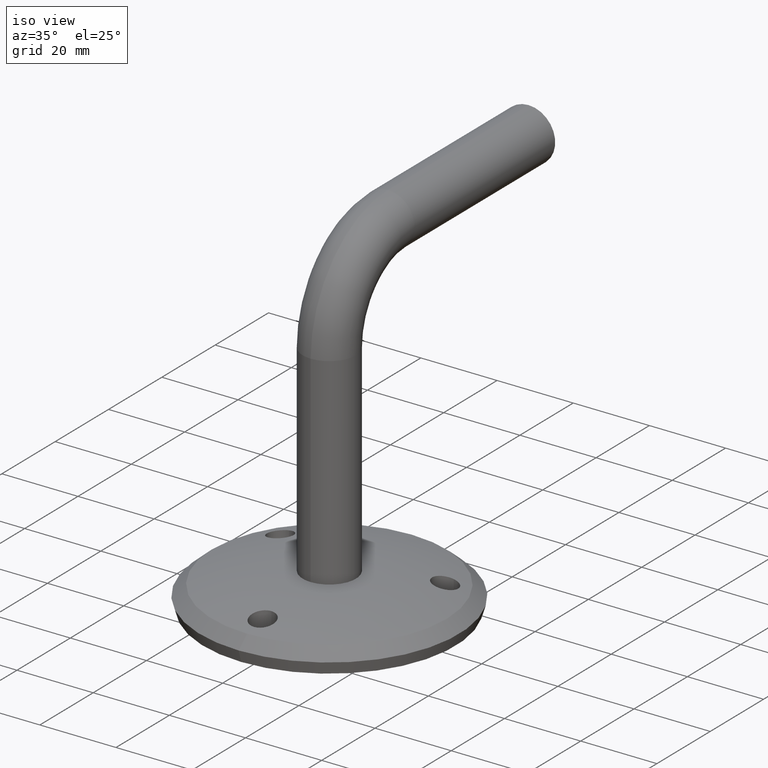
[diagram: clean part render]
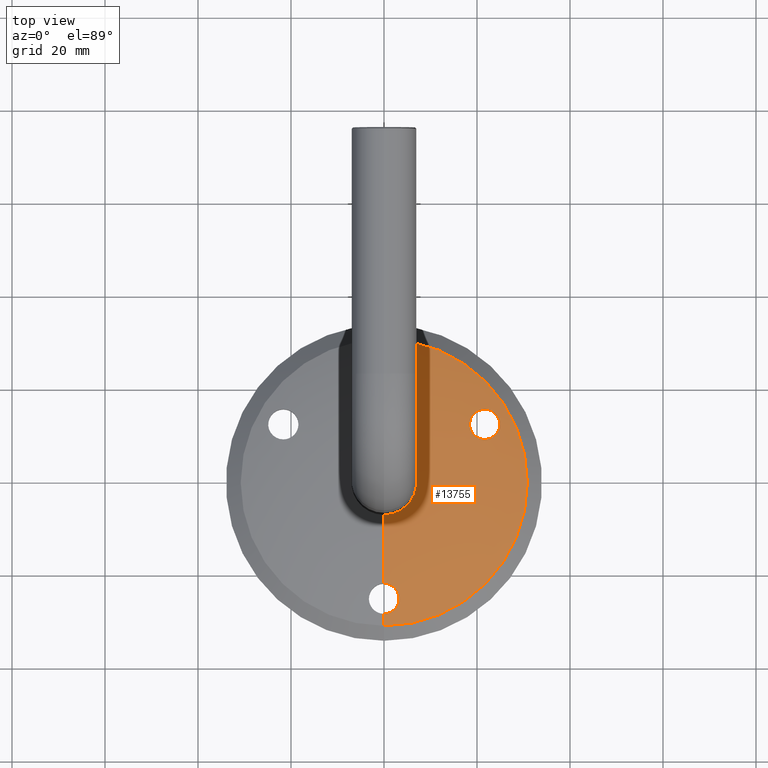
[diagram: tour spotlight — one face highlighted and labeled with its STEP entity id]
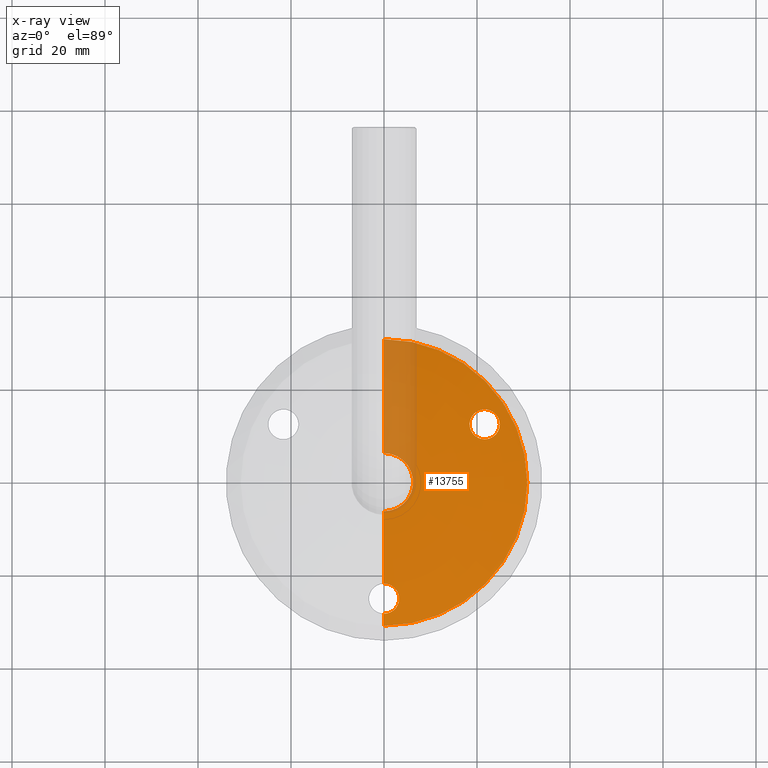
[diagram: x-ray of the same camera — body ghosted, this tour face saturated]
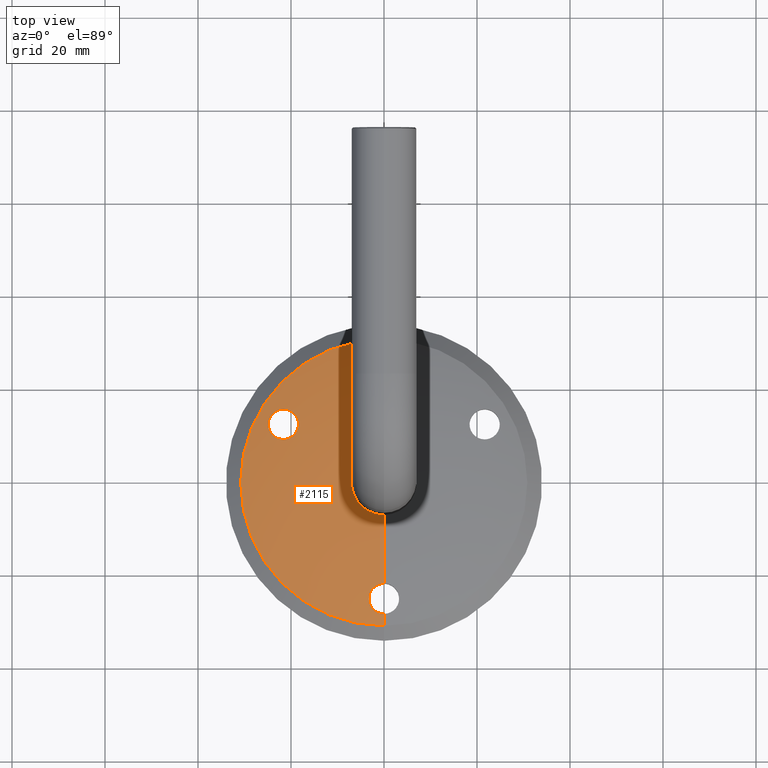
[diagram: tour spotlight — one face highlighted and labeled with its STEP entity id]
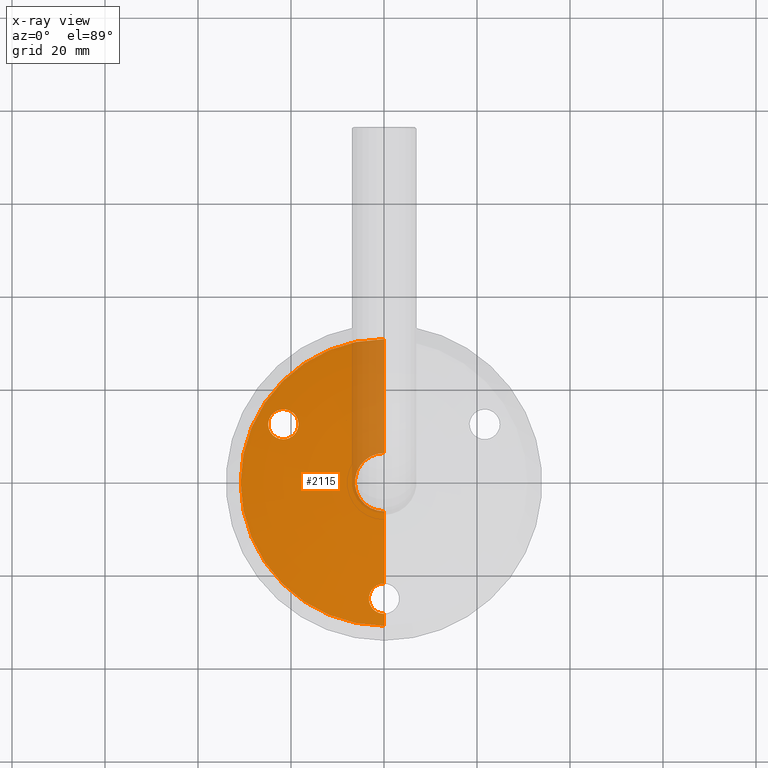
[diagram: x-ray of the same camera — body ghosted, this tour face saturated]
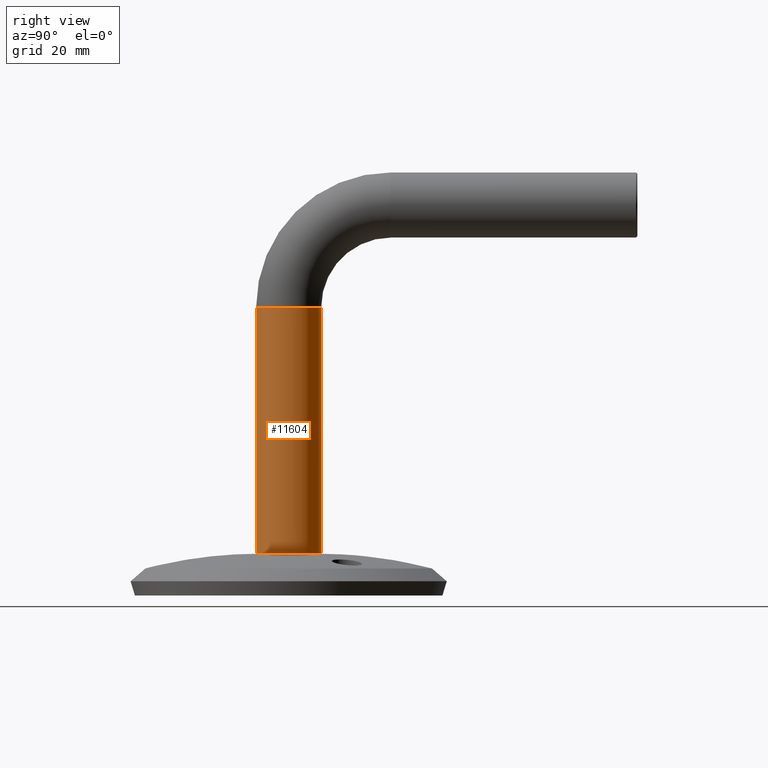
[diagram: tour spotlight — one face highlighted and labeled with its STEP entity id]
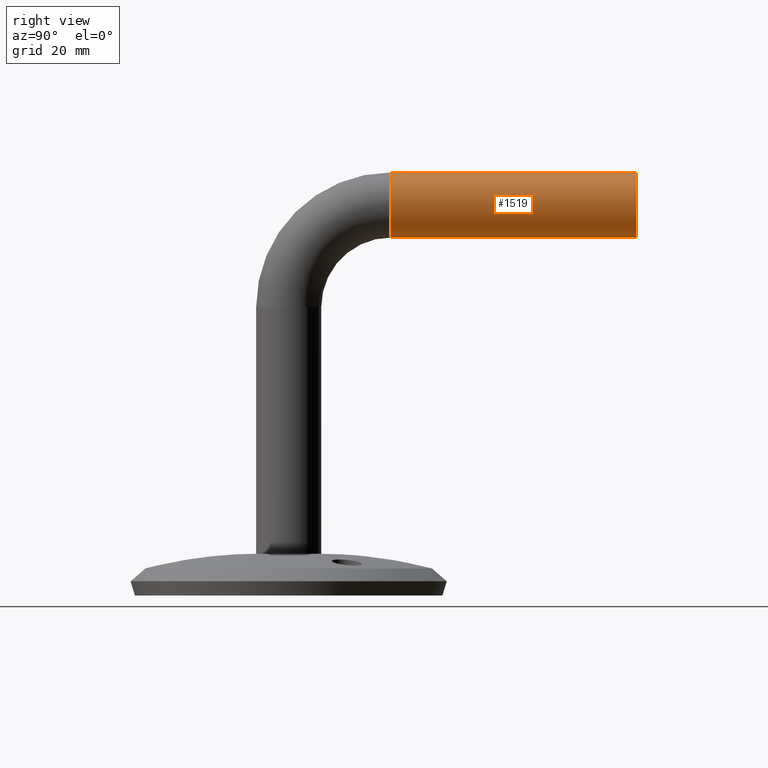
[diagram: tour spotlight — one face highlighted and labeled with its STEP entity id]
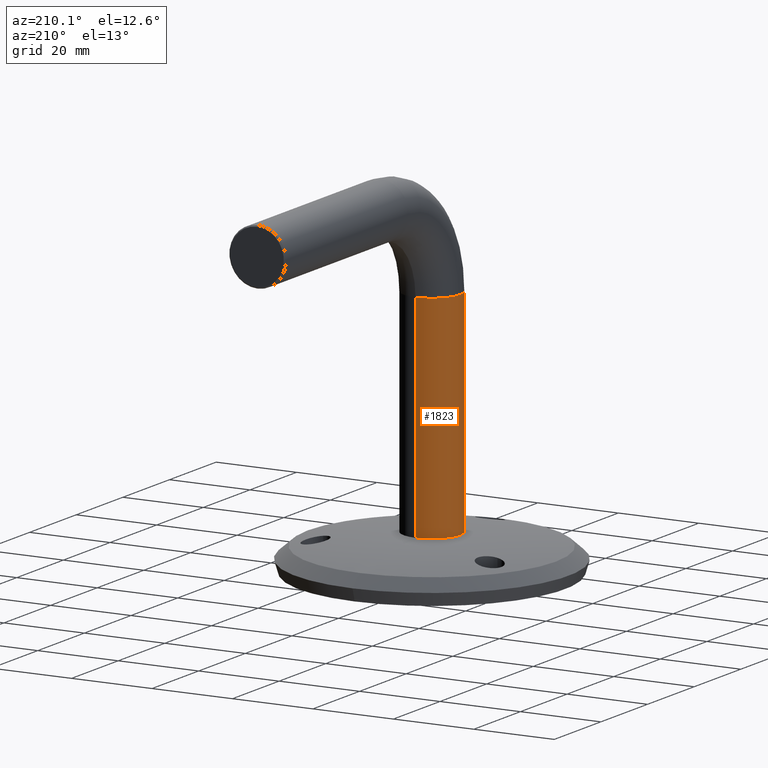
[diagram: tour spotlight — one face highlighted and labeled with its STEP entity id]
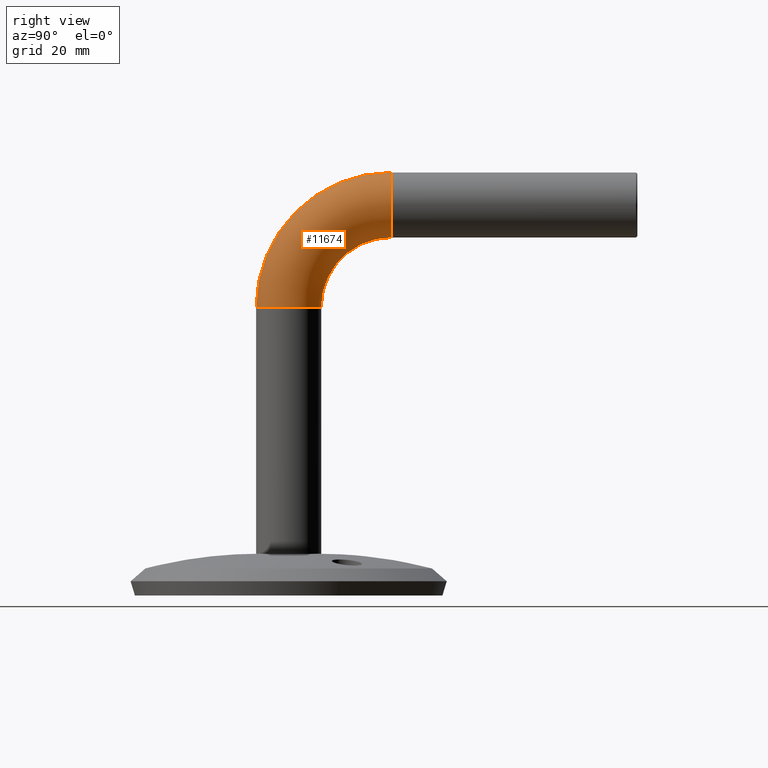
[diagram: tour spotlight — one face highlighted and labeled with its STEP entity id]
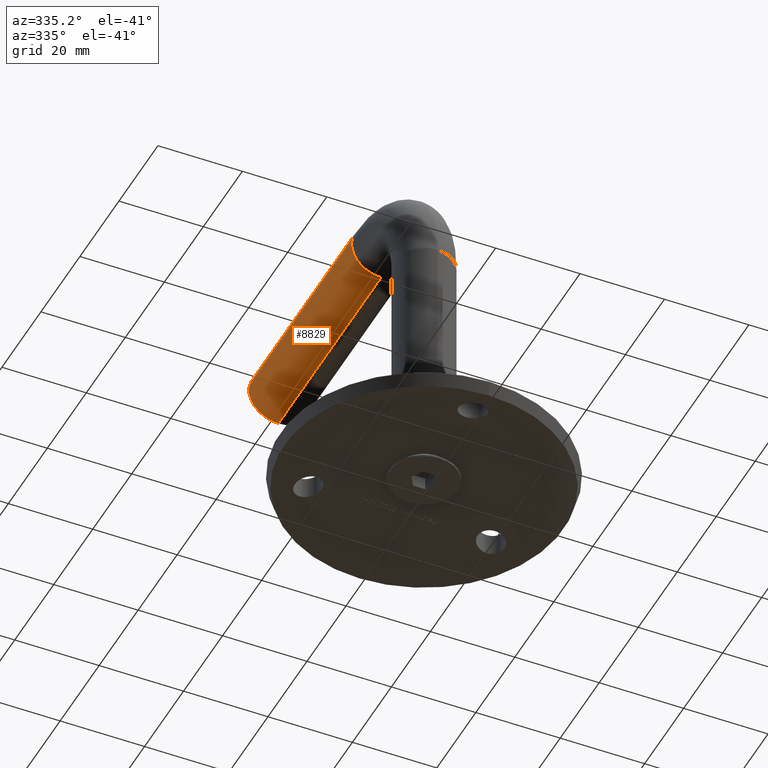
[diagram: tour spotlight — one face highlighted and labeled with its STEP entity id]
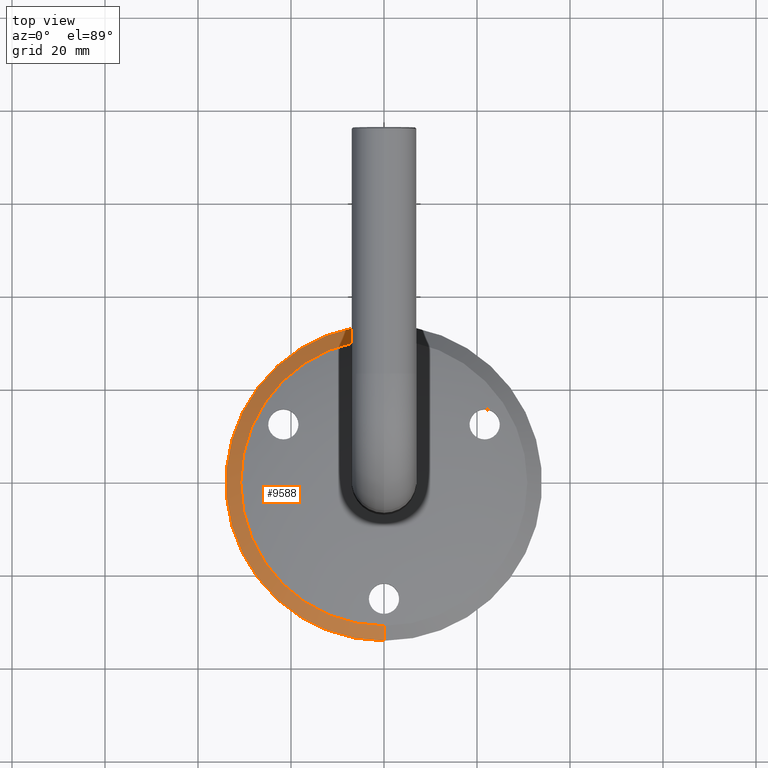
[diagram: tour spotlight — one face highlighted and labeled with its STEP entity id]
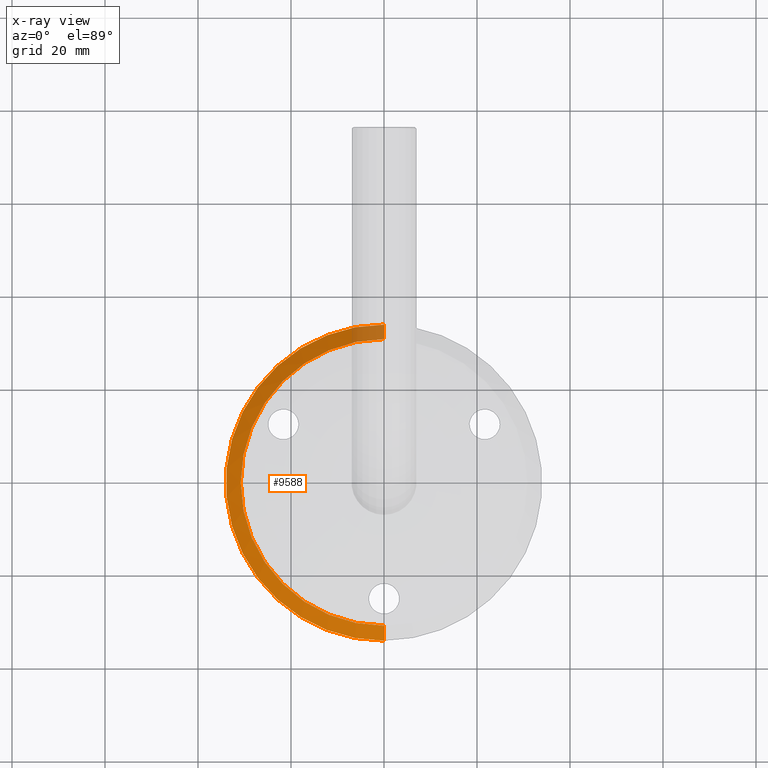
[diagram: x-ray of the same camera — body ghosted, this tour face saturated]
A machine part: a face-by-face anatomy tour. The part has 270 B-rep faces; the first image is the clean iso view, then the 8 largest visible faces are spotlighted one at a time (largest first), each with its STEP entity span.

Face 1 — top view, entity #13755. An x-ray twin of the same camera follows (body ghosted, this face saturated) — the face is partly hidden behind the body. In plain terms, the highlighted toroidal blend (fillet) surface has major radius 6.25 mm and minor (blend) radius 96.8679 mm.
Definition (entity closure, byte-faithful):
#73 = CARTESIAN_POINT ( 'NONE',  ( 21.86245113540460494, 6.763766823309047105, -15.75000000000139799 ) ) ;
#160 = CARTESIAN_POINT ( 'NONE',  ( 24.45772928046256567, 6.804931411281701870, -10.84860511332963107 ) ) ;
#192 = CARTESIAN_POINT ( 'NONE',  ( 3.249705971050873554, 7.083634695001598480, 25.21544843293304439 ) ) ;
#205 = CARTESIAN_POINT ( 'NONE',  ( 24.90220310267512005, 6.538631523790672695, -12.68904459162314602 ) ) ;
#236 = CARTESIAN_POINT ( 'NONE',  ( 1.996003134427482228, 7.624928418969818544, 22.42628224004257831 ) ) ;
#327 = CARTESIAN_POINT ( 'NONE',  ( 2.592119838162724843, 6.730555776375769739, 26.97193400861714352 ) ) ;
#380 = ORIENTED_EDGE ( 'NONE', *, *, #7277, .T. ) ;
#463 = AXIS2_PLACEMENT_3D ( 'NONE', #5791, #11240, #9058 ) ;
#488 = VERTEX_POINT ( 'NONE', #4862 ) ;
#517 = VERTEX_POINT ( 'NONE', #13438 ) ;
#581 = CARTESIAN_POINT ( 'NONE',  ( 21.65063509461107927, 7.443762172100906405, -9.249999999999799272 ) ) ;
#598 = CARTESIAN_POINT ( 'NONE',  ( 0.000000000000000000, 9.000000000000000000, -6.250000000000000000 ) ) ;
#676 = CARTESIAN_POINT ( 'NONE',  ( 18.51143231859730420, 7.570114271881434931, -13.36787084845414242 ) ) ;
#757 = CARTESIAN_POINT ( 'NONE',  ( 2.663648054263593768E-15, 7.751867547311097617, 21.75000000000000355 ) ) ;
#848 = FACE_OUTER_BOUND ( 'NONE', #9772, .T. ) ;
#1178 = CARTESIAN_POINT ( 'NONE',  ( 22.69554561619601429, 6.633605240404254033, -15.58477300314803671 ) ) ;
#1260 = CARTESIAN_POINT ( 'NONE',  ( 24.78935722947823095, 6.667071553097483338, -11.63058854748950566 ) ) ;
#1298 = CARTESIAN_POINT ( 'NONE',  ( 24.08382852400546170, 6.921987470483619731, -10.33515478715318281 ) ) ;
#1338 = VERTEX_POINT ( 'NONE', #5349 ) ;
#1346 = CARTESIAN_POINT ( 'NONE',  ( 23.62070329557335313, 7.045060877581001080, -9.906598898200451586 ) ) ;
#1353 = DIRECTION ( 'NONE',  ( 0.000000000000000000, -1.000000000000000000, 0.000000000000000000 ) ) ;
#1428 = CARTESIAN_POINT ( 'NONE',  ( 2.009756770403622106, 6.604719969269122082, 27.58888144971923495 ) ) ;
#1511 = AXIS2_PLACEMENT_3D ( 'NONE', #11181, #1353, #13221 ) ;
#1626 = CARTESIAN_POINT ( 'NONE',  ( 18.72398389055540591, 7.751757385428341252, -11.07031091074957985 ) ) ;
#1682 = ORIENTED_EDGE ( 'NONE', *, *, #2741, .F. ) ;
#2064 = CARTESIAN_POINT ( 'NONE',  ( 21.65063509458693858, 6.800900535022584847, -15.74999999999979927 ) ) ;
#2166 = CIRCLE ( 'NONE', #463, 96.86785809411671266 ) ;
#2248 = CARTESIAN_POINT ( 'NONE',  ( 23.08835176836804948, 6.580559381218789028, -15.42243618323327503 ) ) ;
#2328 = CARTESIAN_POINT ( 'NONE',  ( 22.07359756895965575, 7.371020030842715620, -9.270650619259839686 ) ) ;
#2444 = CARTESIAN_POINT ( 'NONE',  ( 3.229682686380122014, 7.209067972652524858, 24.58073312575073643 ) ) ;
#2497 = CARTESIAN_POINT ( 'NONE',  ( 3.229069361065497468, 7.042127213427962218, 25.42413973028978091 ) ) ;
#2537 = DIRECTION ( 'NONE',  ( 0.000000000000000000, -1.000000000000000000, 0.000000000000000000 ) ) ;
#2621 = EDGE_CURVE ( 'NONE', #517, #12366, #6112, .T. ) ;
#2674 = DIRECTION ( 'NONE',  ( 0.000000000000000000, 0.000000000000000000, -1.000000000000000000 ) ) ;
#2741 = EDGE_CURVE ( 'NONE', #11617, #5031, #5337, .T. ) ;
#2746 = CARTESIAN_POINT ( 'NONE',  ( 21.22593836437366832, 6.877350455654931416, -15.72896167030978276 ) ) ;
#2788 = CARTESIAN_POINT ( 'NONE',  ( 19.66613349858470272, 7.707035379802546160, -9.917363772214054407 ) ) ;
#2888 = CARTESIAN_POINT ( 'NONE',  ( 19.06615195321914413, 7.367732472658559573, -14.51575142524171014 ) ) ;
#3200 = AXIS2_PLACEMENT_3D ( 'NONE', #11658, #8372, #11610 ) ;
#3213 = CARTESIAN_POINT ( 'NONE',  ( 23.63329513723365949, 6.518338878212561305, -15.08412144697710922 ) ) ;
#3295 = CARTESIAN_POINT ( 'NONE',  ( 24.87570956837459235, 6.609347301377013650, -12.04574505799025985 ) ) ;
#3340 = EDGE_LOOP ( 'NONE', ( #8755, #5709 ) ) ;
#3345 = TOROIDAL_SURFACE ( 'NONE', #1511, 6.250000000000000000, 96.86785809411671266 ) ;
#3369 = CARTESIAN_POINT ( 'NONE',  ( 3.085467336228833624, 6.918431345501173446, 26.04245678958469412 ) ) ;
#3403 = CARTESIAN_POINT ( 'NONE',  ( 2.159482124885875098, 7.599272053114852987, 22.56183352467163417 ) ) ;
#3444 = CARTESIAN_POINT ( 'NONE',  ( 2.459690490778296823, 7.541585264345018302, 22.86506639478142588 ) ) ;
#3493 = CARTESIAN_POINT ( 'NONE',  ( 1.646809651888687664, 6.554338289744087831, 27.83411799325902081 ) ) ;
#3505 = DIRECTION ( 'NONE',  ( 0.000000000000000000, -1.000000000000000000, 0.000000000000000000 ) ) ;
#3667 = FACE_BOUND ( 'NONE', #3340, .T. ) ;
#3741 = CARTESIAN_POINT ( 'NONE',  ( 18.39903633224955115, 7.688309188422216778, -12.31178803480751327 ) ) ;
#3786 = CARTESIAN_POINT ( 'NONE',  ( 21.43905331395628266, 6.837993178315717735, -15.74999999999825206 ) ) ;
#3840 = CARTESIAN_POINT ( 'NONE',  ( 18.56031467720557160, 7.740847869413873816, -11.47081688709502068 ) ) ;
#3887 = CARTESIAN_POINT ( 'NONE',  ( 21.22808647218893086, 7.512113615294007118, -9.270498526028132957 ) ) ;
#3940 = CARTESIAN_POINT ( 'NONE',  ( 19.67079917939846112, 7.207160352955878757, -15.11209813470648022 ) ) ;
#4142 = CARTESIAN_POINT ( 'NONE',  ( 24.23895215472246178, 6.472759978912564272, -14.47733715001454691 ) ) ;
#4155 = CIRCLE ( 'NONE', #8924, 6.250000000000000000 ) ;
#4376 = CARTESIAN_POINT ( 'NONE',  ( 22.49021888152287119, 7.292763826947983752, -9.353145420845004665 ) ) ;
#4466 = CIRCLE ( 'NONE', #3200, 96.86785809411671266 ) ;
#4477 = EDGE_CURVE ( 'NONE', #11617, #488, #4155, .T. ) ;
#4523 = EDGE_CURVE ( 'NONE', #1338, #7027, #2166, .T. ) ;
#4536 = CARTESIAN_POINT ( 'NONE',  ( 0.4285509995761877522, 7.747931884540351533, 21.77113862225056806 ) ) ;
#4548 = CARTESIAN_POINT ( 'NONE',  ( 24.80225699383818494, 6.491294756071069649, -13.32196928157530458 ) ) ;
#4575 = CARTESIAN_POINT ( 'NONE',  ( 0.4273880230121439583, 6.473026365775032431, 28.22893473825014965 ) ) ;
#4712 = ORIENTED_EDGE ( 'NONE', *, *, #4477, .T. ) ;
#4841 = CARTESIAN_POINT ( 'NONE',  ( 18.40243920100218844, 7.647469699292127387, -12.73987849418973539 ) ) ;
#4862 = CARTESIAN_POINT ( 'NONE',  ( 2.269825870711645228E-15, 9.000000000000000000, 6.250000000000000000 ) ) ;
#4980 = CARTESIAN_POINT ( 'NONE',  ( 20.60567280708754012, 7.600999352358817518, -9.415259789300526094 ) ) ;
#5031 = VERTEX_POINT ( 'NONE', #5691 ) ;
#5035 = CARTESIAN_POINT ( 'NONE',  ( 20.81410388358640162, 6.957187990281101797, -15.64750318728762224 ) ) ;
#5326 = CARTESIAN_POINT ( 'NONE',  ( 22.07233054248151305, 6.728919162792756481, -15.72948930670457024 ) ) ;
#5337 = CIRCLE ( 'NONE', #7314, 96.86785809411671266 ) ;
#5349 = CARTESIAN_POINT ( 'NONE',  ( 1.039219180876196981E-14, 6.468677414358976030, 28.25000000000088818 ) ) ;
#5376 = CARTESIAN_POINT ( 'NONE',  ( 24.47807423844119157, 6.467200565668955292, -14.11704523635818020 ) ) ;
#5534 = CARTESIAN_POINT ( 'NONE',  ( 1.039219180876196981E-14, 6.468677414358976030, 28.25000000000088818 ) ) ;
#5628 = CARTESIAN_POINT ( 'NONE',  ( 22.69142572447980299, 7.252724095471847932, -9.414000671765462513 ) ) ;
#5666 = CARTESIAN_POINT ( 'NONE',  ( 2.456549884338156797, 6.696671567172454154, 27.13836269724738059 ) ) ;
#5675 = AXIS2_PLACEMENT_3D ( 'NONE', #6621, #3505, #13173 ) ;
#5691 = CARTESIAN_POINT ( 'NONE',  ( 0.000000000000000000, 5.832423396846378338, -30.81906958466698754 ) ) ;
#5709 = ORIENTED_EDGE ( 'NONE', *, *, #13056, .T. ) ;
#5719 = CARTESIAN_POINT ( 'NONE',  ( 1.450730301065352501, 7.689426294242496240, 22.08392384212722703 ) ) ;
#5791 = CARTESIAN_POINT ( 'NONE',  ( 7.654042494670957606E-16, -87.86785809411674109, 6.250000000000000000 ) ) ;
#5924 = CARTESIAN_POINT ( 'NONE',  ( 20.61300617132758006, 6.998075069688369787, -15.58719513425919878 ) ) ;
#5968 = CARTESIAN_POINT ( 'NONE',  ( 21.44005090804436620, 7.478899173523445576, -9.249999999999799272 ) ) ;
#6008 = DIRECTION ( 'NONE',  ( -1.000000000000000000, -0.000000000000000000, -0.000000000000000000 ) ) ;
#6021 = CARTESIAN_POINT ( 'NONE',  ( 19.19867679768557167, 7.741696785578355389, -10.35609116076234848 ) ) ;
#6061 = CARTESIAN_POINT ( 'NONE',  ( 0.000000000000000000, -87.86785809411674109, -6.250000000000000000 ) ) ;
#6071 = CARTESIAN_POINT ( 'NONE',  ( 18.57598887436824597, 7.539822874930480090, -13.57414181677396847 ) ) ;
#6101 = CARTESIAN_POINT ( 'NONE',  ( 21.65063509461107927, 7.443762172100906405, -9.249999999999799272 ) ) ;
#6112 = B_SPLINE_CURVE_WITH_KNOTS ( 'NONE', 3,
 ( #2064, #73, #5326, #7583, #1178, #2248, #10637, #3213, #8580, #11853, #4142, #5376, #13046, #6542, #4548, #13175, #205, #11027, #3295, #1260, #10857, #7624, #160, #7661, #1298, #8754, #1346, #7712, #12110, #5628, #4376, #2328, #13007, #9902 ),
 .UNSPECIFIED., .F., .F.,
 ( 4, 2, 2, 2, 2, 2, 2, 2, 2, 2, 2, 2, 2, 2, 2, 2, 4 ),
 ( 0.002462102376107836582, 0.003103432298784822123, 0.003744762221461807664, 0.004386092144138795806, 0.005027422066815783082, 0.005668751989492770357, 0.006310081912169758500, 0.006951411834846745776, 0.007592741757523733918, 0.008234071680200721194, 0.008875401602877711071, 0.009516731525554697479, 0.01015806144823168562, 0.01079939137090867377, 0.01144072129358566191, 0.01208205121626265005, 0.01272338113893963646 ),
 .UNSPECIFIED. ) ;
#6542 = CARTESIAN_POINT ( 'NONE',  ( 24.74007116709504928, 6.480806343265234304, -13.53137004372360686 ) ) ;
#6576 = EDGE_CURVE ( 'NONE', #5031, #7027, #13559, .T. ) ;
#6621 = CARTESIAN_POINT ( 'NONE',  ( 0.000000000000000000, 5.832423396846378338, 0.000000000000000000 ) ) ;
#6723 = ORIENTED_EDGE ( 'NONE', *, *, #13077, .T. ) ;
#6925 = CARTESIAN_POINT ( 'NONE',  ( 0.000000000000000000, 9.000000000000000000, 0.000000000000000000 ) ) ;
#7027 = VERTEX_POINT ( 'NONE', #10195 ) ;
#7061 = CARTESIAN_POINT ( 'NONE',  ( 20.02175308365444195, 7.671540754690670205, -9.679539068860270490 ) ) ;
#7104 = CARTESIAN_POINT ( 'NONE',  ( 20.80858069379270958, 7.573490018436577209, -9.353705116369464889 ) ) ;
#7199 = CARTESIAN_POINT ( 'NONE',  ( 19.50148463014431499, 7.721053902950639980, -10.05263470607560272 ) ) ;
#7277 = EDGE_CURVE ( 'NONE', #10581, #1338, #12098, .T. ) ;
#7314 = AXIS2_PLACEMENT_3D ( 'NONE', #6061, #6008, #11509 ) ;
#7583 = CARTESIAN_POINT ( 'NONE',  ( 22.48822433192760073, 6.663905655654024152, -15.64735960805328752 ) ) ;
#7624 = CARTESIAN_POINT ( 'NONE',  ( 24.55896417698683010, 6.768395504227889603, -11.03380705438240206 ) ) ;
#7661 = CARTESIAN_POINT ( 'NONE',  ( 24.22103912793650338, 6.881501039474803960, -10.50002351378152277 ) ) ;
#7699 = CARTESIAN_POINT ( 'NONE',  ( 2.663648054263593768E-15, 7.751867547311097617, 21.75000000000000355 ) ) ;
#7712 = CARTESIAN_POINT ( 'NONE',  ( 23.26934075015503822, 7.128562156529512528, -9.673926753962678760 ) ) ;
#7785 = CARTESIAN_POINT ( 'NONE',  ( 0.8522884021811605315, 7.732039714249881790, 21.85630691137521353 ) ) ;
#7826 = CARTESIAN_POINT ( 'NONE',  ( 3.250287847956591314, 7.167153336952601705, 24.79351554304808758 ) ) ;
#8045 = CARTESIAN_POINT ( 'NONE',  ( 18.82432108497600254, 7.753172816654830157, -10.88131155581647391 ) ) ;
#8372 = DIRECTION ( 'NONE',  ( 1.000000000000000000, 0.000000000000000000, -1.224646799147353207E-16 ) ) ;
#8580 = CARTESIAN_POINT ( 'NONE',  ( 23.80056543789056889, 6.502661505423286137, -14.94660538462470001 ) ) ;
#8754 = CARTESIAN_POINT ( 'NONE',  ( 23.78361427215688195, 7.003734896702746404, -10.03882449049443970 ) ) ;
#8755 = ORIENTED_EDGE ( 'NONE', *, *, #2621, .T. ) ;
#8834 = CARTESIAN_POINT ( 'NONE',  ( 0.2138210466371841534, 7.751867547311112716, 21.75000000000001066 ) ) ;
#8884 = CARTESIAN_POINT ( 'NONE',  ( 3.088691825821385795, 7.329241879095260259, 23.96659625460822696 ) ) ;
#8924 = AXIS2_PLACEMENT_3D ( 'NONE', #6925, #2537, #2674 ) ;
#8930 = CARTESIAN_POINT ( 'NONE',  ( 1.056877654030352165, 6.503584732752882402, 28.08073632947194653 ) ) ;
#9058 = DIRECTION ( 'NONE',  ( -1.224646799147353207E-16, 0.000000000000000000, -1.000000000000000000 ) ) ;
#9138 = CARTESIAN_POINT ( 'NONE',  ( 20.02459226002800463, 7.123631258283292134, -15.34574682953655334 ) ) ;
#9178 = CARTESIAN_POINT ( 'NONE',  ( 18.49941053330472585, 7.731483804127374349, -11.67671642645738750 ) ) ;
#9328 = CARTESIAN_POINT ( 'NONE',  ( 18.42506198759111768, 7.623836625657902211, -12.95107871796262167 ) ) ;
#9772 = EDGE_LOOP ( 'NONE', ( #4712, #6723, #380, #11782, #10259, #1682 ) ) ;
#9845 = CARTESIAN_POINT ( 'NONE',  ( 2.595233511244321889, 7.509637272426216370, 23.03229089533778406 ) ) ;
#9902 = CARTESIAN_POINT ( 'NONE',  ( 21.65063509461107927, 7.443762172100906405, -9.249999999999799272 ) ) ;
#9942 = CARTESIAN_POINT ( 'NONE',  ( 1.056621126302969005, 7.720304892845141431, 21.91914454081443964 ) ) ;
#9995 = CARTESIAN_POINT ( 'NONE',  ( 2.925183551982537988, 6.840006903822291484, 26.43182611664164483 ) ) ;
#10195 = CARTESIAN_POINT ( 'NONE',  ( 3.774247491956197357E-15, 5.832423396846378338, 30.81906958466698754 ) ) ;
#10240 = CARTESIAN_POINT ( 'NONE',  ( 20.21326817483108940, 7.649933360824827666, -9.577407882072016321 ) ) ;
#10259 = ORIENTED_EDGE ( 'NONE', *, *, #6576, .F. ) ;
#10581 = VERTEX_POINT ( 'NONE', #757 ) ;
#10637 = CARTESIAN_POINT ( 'NONE',  ( 23.27601223807464592, 6.557444740508055148, -15.32254736697993813 ) ) ;
#10857 = CARTESIAN_POINT ( 'NONE',  ( 24.72580485454064458, 6.699066009842794323, -11.42695258595624352 ) ) ;
#11015 = CARTESIAN_POINT ( 'NONE',  ( 2.828097502070020308, 7.441935901095575012, 23.38476607971431775 ) ) ;
#11027 = CARTESIAN_POINT ( 'NONE',  ( 24.89887064139564998, 6.583230249695103176, -12.26042078284472581 ) ) ;
#11059 = CARTESIAN_POINT ( 'NONE',  ( 0.8488135840355020001, 6.490429286983676604, 28.14455013724532861 ) ) ;
#11181 = CARTESIAN_POINT ( 'NONE',  ( 0.000000000000000000, -87.86785809411674109, 0.000000000000000000 ) ) ;
#11240 = DIRECTION ( 'NONE',  ( 1.000000000000000000, 0.000000000000000000, -1.224646799147353207E-16 ) ) ;
#11371 = CARTESIAN_POINT ( 'NONE',  ( 21.65063509458693858, 6.800900535022584847, -15.74999999999979927 ) ) ;
#11509 = DIRECTION ( 'NONE',  ( 0.000000000000000000, 0.000000000000000000, 1.000000000000000000 ) ) ;
#11555 = B_SPLINE_CURVE_WITH_KNOTS ( 'NONE', 3,
 ( #581, #5968, #3887, #7104, #4980, #10240, #7061, #2788, #7199, #6021, #12531, #8045, #1626, #3840, #9178, #13549, #3741, #4841, #9328, #676, #6071, #12385, #2888, #3940, #9138, #5924, #5035, #2746, #3786, #11371 ),
 .UNSPECIFIED., .F., .F.,
 ( 4, 2, 2, 2, 2, 2, 2, 2, 2, 2, 2, 2, 2, 2, 4 ),
 ( 0.01272338113893963646, 0.01336400177601663498, 0.01400462241309363351, 0.01464524305017063203, 0.01528586368724763056, 0.01592648432432462735, 0.01656710496140162761, 0.01720772559847862440, 0.01784834623555562466, 0.01848896687263262145, 0.01912958750970961824, 0.02041082878386361182, 0.02169207005801760541, 0.02233269069509459526, 0.02297331133217158511 ),
 .UNSPECIFIED. ) ;
#11610 = DIRECTION ( 'NONE',  ( -1.224646799147353207E-16, 0.000000000000000000, -1.000000000000000000 ) ) ;
#11617 = VERTEX_POINT ( 'NONE', #598 ) ;
#11658 = CARTESIAN_POINT ( 'NONE',  ( 7.654042494670957606E-16, -87.86785809411674109, 6.250000000000000000 ) ) ;
#11782 = ORIENTED_EDGE ( 'NONE', *, *, #4523, .T. ) ;
#11853 = CARTESIAN_POINT ( 'NONE',  ( 24.10214240435892918, 6.479979331016952671, -14.64433912879501420 ) ) ;
#12014 = CARTESIAN_POINT ( 'NONE',  ( 3.148826693734348314, 7.289884883104234881, 24.16841992606106970 ) ) ;
#12054 = CARTESIAN_POINT ( 'NONE',  ( 3.147410079571849373, 6.959653925929659479, 25.83701448039550286 ) ) ;
#12096 = CARTESIAN_POINT ( 'NONE',  ( 2.826711096429196601, 6.802395822271286363, 26.61781128907599125 ) ) ;
#12098 = B_SPLINE_CURVE_WITH_KNOTS ( 'NONE', 3,
 ( #7699, #8834, #4536, #7785, #9942, #5719, #12189, #236, #3403, #3444, #9845, #11015, #13252, #8884, #12014, #2444, #7826, #192, #2497, #12054, #3369, #9995, #12096, #327, #5666, #1428, #3493, #8930, #11059, #4575, #13120, #5534 ),
 .UNSPECIFIED., .F., .F.,
 ( 4, 2, 2, 2, 2, 2, 2, 2, 2, 2, 2, 2, 2, 2, 2, 4 ),
 ( 0.002675998669147024427, 0.003317463588860728937, 0.003958928508574433881, 0.004600393428288137958, 0.005241858348001842034, 0.005883323267715546978, 0.006524788187429251055, 0.007166253107142955131, 0.007807718026856659208, 0.008449182946570363284, 0.009090647866284069095, 0.009732112785997773172, 0.01037357770571147725, 0.01165650754513889407, 0.01229797246485260162, 0.01293943738456630743 ),
 .UNSPECIFIED. ) ;
#12110 = CARTESIAN_POINT ( 'NONE',  ( 23.08007677083683262, 7.170850833997814533, -9.573682607208269246 ) ) ;
#12189 = CARTESIAN_POINT ( 'NONE',  ( 1.642279463264157746, 7.670001037368018082, 22.18735537525528301 ) ) ;
#12366 = VERTEX_POINT ( 'NONE', #6101 ) ;
#12385 = CARTESIAN_POINT ( 'NONE',  ( 18.82370166191919481, 7.442824155314308854, -14.15827243115057854 ) ) ;
#12531 = CARTESIAN_POINT ( 'NONE',  ( 19.06070939029686429, 7.748219674553298297, -10.52503468219682325 ) ) ;
#13007 = CARTESIAN_POINT ( 'NONE',  ( 21.86145243684352835, 7.408586267515269164, -9.249999999999797495 ) ) ;
#13046 = CARTESIAN_POINT ( 'NONE',  ( 24.57807112464464083, 6.468862709367106056, -13.92774567172055278 ) ) ;
#13056 = EDGE_CURVE ( 'NONE', #12366, #517, #11555, .T. ) ;
#13077 = EDGE_CURVE ( 'NONE', #488, #10581, #4466, .T. ) ;
#13120 = CARTESIAN_POINT ( 'NONE',  ( 0.2146858730883783040, 6.468677414359156330, 28.25000000000000000 ) ) ;
#13173 = DIRECTION ( 'NONE',  ( 0.000000000000000000, 0.000000000000000000, -1.000000000000000000 ) ) ;
#13175 = CARTESIAN_POINT ( 'NONE',  ( 24.88285900870015510, 6.520233913796923630, -12.90135104924756071 ) ) ;
#13221 = DIRECTION ( 'NONE',  ( 0.000000000000000000, 0.000000000000000000, -1.000000000000000000 ) ) ;
#13252 = CARTESIAN_POINT ( 'NONE',  ( 2.927248823895080232, 7.405802940792455047, 23.57201021751188819 ) ) ;
#13438 = CARTESIAN_POINT ( 'NONE',  ( 21.65063509458693858, 6.800900535022584847, -15.74999999999979927 ) ) ;
#13549 = CARTESIAN_POINT ( 'NONE',  ( 18.41883045339242031, 7.705345168268687317, -12.09570946184352813 ) ) ;
#13559 = CIRCLE ( 'NONE', #5675, 30.81906958466698043 ) ;
#13755 = ADVANCED_FACE ( 'NONE', ( #3667, #848 ), #3345, .T. ) ;

Face 2 — top view, entity #2115. An x-ray twin of the same camera follows (body ghosted, this face saturated) — the face is partly hidden behind the body. In plain terms, the highlighted toroidal blend (fillet) surface has major radius 6.25 mm and minor (blend) radius 96.8679 mm.
Definition (entity closure, byte-faithful):
#27 = CARTESIAN_POINT ( 'NONE',  ( -3.087914777517207110, 7.329578676758496059, 23.96485749719986202 ) ) ;
#125 = AXIS2_PLACEMENT_3D ( 'NONE', #12286, #13211, #11168 ) ;
#193 = CARTESIAN_POINT ( 'NONE',  ( -23.28009756290877874, 6.556974335884590666, -15.32005004288423144 ) ) ;
#463 = AXIS2_PLACEMENT_3D ( 'NONE', #5791, #11240, #9058 ) ;
#472 = ORIENTED_EDGE ( 'NONE', *, *, #8482, .T. ) ;
#488 = VERTEX_POINT ( 'NONE', #4862 ) ;
#598 = CARTESIAN_POINT ( 'NONE',  ( 0.000000000000000000, 9.000000000000000000, -6.250000000000000000 ) ) ;
#748 = CARTESIAN_POINT ( 'NONE',  ( -18.82256855949109564, 7.753174623746891925, -10.88432750625080736 ) ) ;
#757 = CARTESIAN_POINT ( 'NONE',  ( 2.663648054263593768E-15, 7.751867547311097617, 21.75000000000000355 ) ) ;
#858 = CARTESIAN_POINT ( 'NONE',  ( -18.74308623186221112, 7.474451496855821553, -13.96752491970396015 ) ) ;
#1070 = CARTESIAN_POINT ( 'NONE',  ( -24.87524793929568645, 6.609758816811923232, -12.04252570013574442 ) ) ;
#1083 = CARTESIAN_POINT ( 'NONE',  ( -21.43976626600841939, 6.837868189877881697, -15.75000000000114575 ) ) ;
#1112 = CARTESIAN_POINT ( 'NONE',  ( -23.08099377227790683, 7.170656500347169171, -9.574070142667245875 ) ) ;
#1124 = CARTESIAN_POINT ( 'NONE',  ( -2.609078977561599011, 7.512945176536091729, 23.01562196836385965 ) ) ;
#1167 = CARTESIAN_POINT ( 'NONE',  ( -24.22026000917217203, 6.881732273111484943, -10.49907461168910672 ) ) ;
#1254 = CARTESIAN_POINT ( 'NONE',  ( -22.07586815871226449, 6.728342360086890572, -15.72903501752531596 ) ) ;
#1338 = VERTEX_POINT ( 'NONE', #5349 ) ;
#1840 = CARTESIAN_POINT ( 'NONE',  ( -20.03544034700096432, 7.123323148496264245, -15.32816659887414268 ) ) ;
#1930 = CARTESIAN_POINT ( 'NONE',  ( -19.68196256347058437, 7.206783464783149462, -15.09455368971767086 ) ) ;
#2109 = CARTESIAN_POINT ( 'NONE',  ( -3.249823578747944364, 7.084265242094508253, 25.21226846950460398 ) ) ;
#2115 = ADVANCED_FACE ( 'NONE', ( #4974, #3782 ), #13570, .T. ) ;
#2151 = CARTESIAN_POINT ( 'NONE',  ( -0.4298055247723496231, 7.747888868540231400, 21.77136921226019695 ) ) ;
#2166 = CIRCLE ( 'NONE', #463, 96.86785809411671266 ) ;
#2195 = B_SPLINE_CURVE_WITH_KNOTS ( 'NONE', 3,
 ( #12817, #7523, #13870, #3153, #3205, #1112, #10713, #4229, #13922, #6400, #1167, #7474, #3287, #5220, #12769, #1070, #13831, #8564, #4370, #4489, #8789, #5536, #2317, #12055, #12097, #193, #2408, #12017, #11016, #1254, #9846, #13075 ),
 .UNSPECIFIED., .F., .F.,
 ( 4, 2, 2, 2, 2, 2, 2, 2, 2, 2, 2, 2, 2, 2, 2, 4 ),
 ( 0.01281170747020639669, 0.01345283528534573121, 0.01409396310048506747, 0.01473509091562440199, 0.01537621873076373651, 0.01601734654590307103, 0.01665847436104240728, 0.01729960217618174007, 0.01794072999132107632, 0.01858185780646041257, 0.01922298562159974883, 0.02050524125187841787, 0.02114636906701775412, 0.02178749688215709385, 0.02242862469729643010, 0.02306975251243576636 ),
 .UNSPECIFIED. ) ;
#2317 = CARTESIAN_POINT ( 'NONE',  ( -24.25798818107862687, 6.468284958702171572, -14.48787346568033030 ) ) ;
#2318 = EDGE_CURVE ( 'NONE', #488, #11617, #11411, .T. ) ;
#2408 = CARTESIAN_POINT ( 'NONE',  ( -23.08915652674199137, 6.580450357354504121, -15.42210707260243652 ) ) ;
#2566 = ORIENTED_EDGE ( 'NONE', *, *, #2741, .T. ) ;
#2741 = EDGE_CURVE ( 'NONE', #11617, #5031, #5337, .T. ) ;
#2881 = EDGE_CURVE ( 'NONE', #12800, #7089, #7286, .T. ) ;
#2914 = CARTESIAN_POINT ( 'NONE',  ( -20.21179144371190617, 7.650107028217478344, -9.578124035909581835 ) ) ;
#2949 = CARTESIAN_POINT ( 'NONE',  ( -18.57704045484267041, 7.539352016929532496, -13.57725845070311266 ) ) ;
#2973 = CARTESIAN_POINT ( 'NONE',  ( -1.453099171222520081, 6.537682605050811446, 27.91504995617540530 ) ) ;
#3005 = CARTESIAN_POINT ( 'NONE',  ( -19.21955619323129127, 7.326985164524205452, -14.66714645821740604 ) ) ;
#3112 = CARTESIAN_POINT ( 'NONE',  ( -1.055168650254638019, 6.503427943745303530, 28.08149842899937099 ) ) ;
#3153 = CARTESIAN_POINT ( 'NONE',  ( -22.48974711991994724, 7.292846355353956866, -9.353108993629335899 ) ) ;
#3161 = CARTESIAN_POINT ( 'NONE',  ( 2.663648054263593768E-15, 7.751867547311097617, 21.75000000000000355 ) ) ;
#3200 = AXIS2_PLACEMENT_3D ( 'NONE', #11658, #8372, #11610 ) ;
#3205 = CARTESIAN_POINT ( 'NONE',  ( -22.69079268773315761, 7.252858608254179273, -9.413729814439662391 ) ) ;
#3287 = CARTESIAN_POINT ( 'NONE',  ( -24.55888350597390968, 6.768417864970216691, -11.03372461855246023 ) ) ;
#3782 = FACE_BOUND ( 'NONE', #6996, .T. ) ;
#3915 = CARTESIAN_POINT ( 'NONE',  ( -18.42568917097505832, 7.623336825853793464, -12.95527577152108556 ) ) ;
#3969 = CARTESIAN_POINT ( 'NONE',  ( -20.80936312523732568, 7.573381300241443626, -9.353493578317019441 ) ) ;
#4066 = CARTESIAN_POINT ( 'NONE',  ( -20.81396071332237696, 6.957202701091071972, -15.64761555734165910 ) ) ;
#4229 = CARTESIAN_POINT ( 'NONE',  ( -23.61966499722959512, 7.045310292042381128, -9.905886485022943333 ) ) ;
#4235 = B_SPLINE_CURVE_WITH_KNOTS ( 'NONE', 3,
 ( #13790, #8476, #9583, #8427, #3112, #2973, #11747, #12825, #6353, #10528, #7483, #5372, #10769, #5322, #12910, #6409, #2109, #11893, #7530, #10815, #27, #6445, #1124, #4238, #4280, #5420, #9632, #8620, #10719, #2151, #7442, #3161 ),
 .UNSPECIFIED., .F., .F.,
 ( 4, 2, 2, 2, 2, 2, 2, 2, 2, 2, 2, 2, 2, 2, 2, 4 ),
 ( 0.01293943738456630743, 0.01358043578084575098, 0.01422143417712519453, 0.01486243257340463808, 0.01550343096968408163, 0.01614442936596352518, 0.01678542776224296873, 0.01742642615852241228, 0.01806742455480185583, 0.01870842295108129938, 0.01934942134736074293, 0.02063141813991963003, 0.02127241653619907358, 0.02191341493247851713, 0.02255441332875796415, 0.02319541172503740770 ),
 .UNSPECIFIED. ) ;
#4238 = CARTESIAN_POINT ( 'NONE',  ( -2.157926675756084212, 7.599537841312431929, 22.56043245984891854 ) ) ;
#4280 = CARTESIAN_POINT ( 'NONE',  ( -1.994418385700591712, 7.625152611999956420, 22.42509589065235787 ) ) ;
#4370 = CARTESIAN_POINT ( 'NONE',  ( -24.88342391612608751, 6.520593587663499058, -12.89687774334093540 ) ) ;
#4466 = CIRCLE ( 'NONE', #3200, 96.86785809411671266 ) ;
#4489 = CARTESIAN_POINT ( 'NONE',  ( -24.80330873290085236, 6.491518641873286199, -13.31797581755488658 ) ) ;
#4523 = EDGE_CURVE ( 'NONE', #1338, #7027, #2166, .T. ) ;
#4862 = CARTESIAN_POINT ( 'NONE',  ( 2.269825870711645228E-15, 9.000000000000000000, 6.250000000000000000 ) ) ;
#4904 = EDGE_LOOP ( 'NONE', ( #5787, #13078, #2566, #9190, #12787, #12767 ) ) ;
#4932 = DIRECTION ( 'NONE',  ( 0.000000000000000000, -1.000000000000000000, 0.000000000000000000 ) ) ;
#4974 = FACE_OUTER_BOUND ( 'NONE', #4904, .T. ) ;
#5012 = CARTESIAN_POINT ( 'NONE',  ( -18.72252191204538718, 7.751706376908242824, -11.07339080543205689 ) ) ;
#5031 = VERTEX_POINT ( 'NONE', #5691 ) ;
#5060 = CARTESIAN_POINT ( 'NONE',  ( -18.47816835490717580, 7.735278524248696108, -11.67283786278995983 ) ) ;
#5102 = CARTESIAN_POINT ( 'NONE',  ( -19.51891519723501034, 7.247503981040253507, -14.96220199724335131 ) ) ;
#5220 = CARTESIAN_POINT ( 'NONE',  ( -24.72538480566374375, 6.699251686278230977, -11.42585544230994721 ) ) ;
#5322 = CARTESIAN_POINT ( 'NONE',  ( -3.086355254490795286, 6.918965488351990878, 26.03979778896641406 ) ) ;
#5333 = CARTESIAN_POINT ( 'NONE',  ( -21.23025089678216304, 6.876527610670458479, -15.72967255977130918 ) ) ;
#5337 = CIRCLE ( 'NONE', #7314, 96.86785809411671266 ) ;
#5349 = CARTESIAN_POINT ( 'NONE',  ( 1.039219180876196981E-14, 6.468677414358976030, 28.25000000000088818 ) ) ;
#5372 = CARTESIAN_POINT ( 'NONE',  ( -2.825979320813650997, 6.802161488334885320, 26.61896719972493131 ) ) ;
#5420 = CARTESIAN_POINT ( 'NONE',  ( -1.641425533274628590, 7.670087434359107448, 22.18689529375993175 ) ) ;
#5536 = CARTESIAN_POINT ( 'NONE',  ( -24.49981808348823975, 6.462916210931982874, -14.12093100842588811 ) ) ;
#5599 = CARTESIAN_POINT ( 'NONE',  ( -21.65063509462699187, 6.800900535015530934, -15.75000000000010481 ) ) ;
#5691 = CARTESIAN_POINT ( 'NONE',  ( 0.000000000000000000, 5.832423396846378338, -30.81906958466698754 ) ) ;
#5787 = ORIENTED_EDGE ( 'NONE', *, *, #13077, .F. ) ;
#5791 = CARTESIAN_POINT ( 'NONE',  ( 7.654042494670957606E-16, -87.86785809411674109, 6.250000000000000000 ) ) ;
#5876 = CARTESIAN_POINT ( 'NONE',  ( 0.000000000000000000, -87.86785809411674109, 0.000000000000000000 ) ) ;
#6008 = DIRECTION ( 'NONE',  ( -1.000000000000000000, -0.000000000000000000, -0.000000000000000000 ) ) ;
#6061 = CARTESIAN_POINT ( 'NONE',  ( 0.000000000000000000, -87.86785809411674109, -6.250000000000000000 ) ) ;
#6145 = CARTESIAN_POINT ( 'NONE',  ( -21.65063509462671831, 7.443762172098264962, -9.250000000000103029 ) ) ;
#6164 = CIRCLE ( 'NONE', #7773, 30.81906958466698043 ) ;
#6196 = CARTESIAN_POINT ( 'NONE',  ( -18.84413882270743557, 7.439823932398696549, -14.15252112124026063 ) ) ;
#6353 = CARTESIAN_POINT ( 'NONE',  ( -2.159700344767784053, 6.635529836995396558, 27.43793124952163964 ) ) ;
#6400 = CARTESIAN_POINT ( 'NONE',  ( -24.08486523728982931, 6.921703427930196106, -10.33619456560735017 ) ) ;
#6409 = CARTESIAN_POINT ( 'NONE',  ( -3.229224015376084722, 7.042244762680498482, 25.42355292543557965 ) ) ;
#6445 = CARTESIAN_POINT ( 'NONE',  ( -2.849145176007910507, 7.442905200126058496, 23.38079573145302703 ) ) ;
#6996 = EDGE_LOOP ( 'NONE', ( #10822, #472 ) ) ;
#7027 = VERTEX_POINT ( 'NONE', #10195 ) ;
#7089 = VERTEX_POINT ( 'NONE', #8170 ) ;
#7272 = CARTESIAN_POINT ( 'NONE',  ( -20.61090290968534688, 6.998524153542548198, -15.58632892368356870 ) ) ;
#7286 = B_SPLINE_CURVE_WITH_KNOTS ( 'NONE', 3,
 ( #9685, #1083, #5333, #4066, #7272, #11494, #1840, #1930, #5102, #3005, #10555, #6196, #858, #2949, #10410, #3915, #8346, #9457, #5060, #5012, #748, #12557, #13629, #10512, #8255, #9355, #2914, #10461, #3969, #11537, #12605, #6145 ),
 .UNSPECIFIED., .F., .F.,
 ( 4, 2, 2, 2, 2, 2, 2, 2, 2, 2, 2, 2, 2, 2, 2, 4 ),
 ( 0.002552506948749012038, 0.003193706981340100476, 0.003834907013931189348, 0.004476107046522277352, 0.005117307079113366658, 0.005758507111704455096, 0.006399707144295543534, 0.007040907176886631973, 0.007682107209477721278, 0.008964507274659892083, 0.009605707307250976185, 0.01024690733984206029, 0.01088810737243314439, 0.01152930740502422849, 0.01217050743761531259, 0.01281170747020639669 ),
 .UNSPECIFIED. ) ;
#7314 = AXIS2_PLACEMENT_3D ( 'NONE', #6061, #6008, #11509 ) ;
#7442 = CARTESIAN_POINT ( 'NONE',  ( -0.2136655392572288925, 7.751867547311115381, 21.75000000000000355 ) ) ;
#7474 = CARTESIAN_POINT ( 'NONE',  ( -24.45657802290063287, 6.805324487972940872, -10.84671270061672743 ) ) ;
#7483 = CARTESIAN_POINT ( 'NONE',  ( -2.592370362852269405, 6.730642755567616931, 26.97150445529721452 ) ) ;
#7523 = CARTESIAN_POINT ( 'NONE',  ( -21.86178758406598988, 7.408530346561990498, -9.250000000001129763 ) ) ;
#7530 = CARTESIAN_POINT ( 'NONE',  ( -3.230083394997089741, 7.208673149924960555, 24.58274771960390837 ) ) ;
#7773 = AXIS2_PLACEMENT_3D ( 'NONE', #10335, #4932, #13647 ) ;
#8170 = CARTESIAN_POINT ( 'NONE',  ( -21.65063509462671831, 7.443762172098264962, -9.250000000000103029 ) ) ;
#8255 = CARTESIAN_POINT ( 'NONE',  ( -19.66419398564392296, 7.707217210910466854, -9.918783205491662258 ) ) ;
#8346 = CARTESIAN_POINT ( 'NONE',  ( -18.40269323074127783, 7.647038591413648945, -12.74401168468835799 ) ) ;
#8372 = DIRECTION ( 'NONE',  ( 1.000000000000000000, 0.000000000000000000, -1.224646799147353207E-16 ) ) ;
#8427 = CARTESIAN_POINT ( 'NONE',  ( -0.8508472230887480503, 6.490558841050492411, 28.14392164046587297 ) ) ;
#8476 = CARTESIAN_POINT ( 'NONE',  ( -0.2145297367391753030, 6.468677414359159883, 28.25000000000000000 ) ) ;
#8482 = EDGE_CURVE ( 'NONE', #7089, #12800, #2195, .T. ) ;
#8499 = AXIS2_PLACEMENT_3D ( 'NONE', #5876, #11368, #13365 ) ;
#8564 = CARTESIAN_POINT ( 'NONE',  ( -24.90238227685936678, 6.539026301849888867, -12.68489314623998965 ) ) ;
#8620 = CARTESIAN_POINT ( 'NONE',  ( -1.055621573163621818, 7.720369774817676500, 21.91879760054753135 ) ) ;
#8789 = CARTESIAN_POINT ( 'NONE',  ( -24.74151405642099988, 6.481002879536628569, -13.52696519073728965 ) ) ;
#9058 = DIRECTION ( 'NONE',  ( -1.224646799147353207E-16, 0.000000000000000000, -1.000000000000000000 ) ) ;
#9190 = ORIENTED_EDGE ( 'NONE', *, *, #13025, .F. ) ;
#9355 = CARTESIAN_POINT ( 'NONE',  ( -20.02114332141219677, 7.671613284791758858, -9.679825363435172747 ) ) ;
#9457 = CARTESIAN_POINT ( 'NONE',  ( -18.39691108531351915, 7.708640258030796666, -12.09943504311174500 ) ) ;
#9583 = CARTESIAN_POINT ( 'NONE',  ( -0.4317747409676364612, 6.473162635516587216, 28.22827428380703552 ) ) ;
#9632 = CARTESIAN_POINT ( 'NONE',  ( -1.449895876873540601, 7.689505042722556638, 22.08350431539061631 ) ) ;
#9685 = CARTESIAN_POINT ( 'NONE',  ( -21.65063509462699187, 6.800900535015530934, -15.75000000000010481 ) ) ;
#9846 = CARTESIAN_POINT ( 'NONE',  ( -21.86148017338797800, 6.763937043767777268, -15.74999999999906386 ) ) ;
#10195 = CARTESIAN_POINT ( 'NONE',  ( 3.774247491956197357E-15, 5.832423396846378338, 30.81906958466698754 ) ) ;
#10335 = CARTESIAN_POINT ( 'NONE',  ( 0.000000000000000000, 5.832423396846378338, 0.000000000000000000 ) ) ;
#10410 = CARTESIAN_POINT ( 'NONE',  ( -18.51229794280090246, 7.569687457572666034, -13.37085714102759582 ) ) ;
#10461 = CARTESIAN_POINT ( 'NONE',  ( -20.60439068427876208, 7.601169648724122929, -9.415684381404783920 ) ) ;
#10512 = CARTESIAN_POINT ( 'NONE',  ( -19.49944210081830320, 7.721215191137979161, -10.05444719488960459 ) ) ;
#10528 = CARTESIAN_POINT ( 'NONE',  ( -2.459248543912849971, 6.697276620508664458, 27.13539480093184508 ) ) ;
#10555 = CARTESIAN_POINT ( 'NONE',  ( -19.08202846656056195, 7.366147445496353363, -14.50237543200298695 ) ) ;
#10581 = VERTEX_POINT ( 'NONE', #757 ) ;
#10713 = CARTESIAN_POINT ( 'NONE',  ( -23.26984328656615020, 7.128440061764059088, -9.674284423885131545 ) ) ;
#10719 = CARTESIAN_POINT ( 'NONE',  ( -0.8516604290423002155, 7.732059225567655680, 21.85620228604485149 ) ) ;
#10769 = CARTESIAN_POINT ( 'NONE',  ( -2.926524962650108641, 6.840564917506108067, 26.42906257450406926 ) ) ;
#10815 = CARTESIAN_POINT ( 'NONE',  ( -3.148393355054164289, 7.290312317848757218, 24.16623895150802070 ) ) ;
#10822 = ORIENTED_EDGE ( 'NONE', *, *, #2881, .T. ) ;
#11016 = CARTESIAN_POINT ( 'NONE',  ( -22.49195517809880940, 6.663346654270082325, -15.64637423399214633 ) ) ;
#11168 = DIRECTION ( 'NONE',  ( 0.000000000000000000, 0.000000000000000000, -1.000000000000000000 ) ) ;
#11240 = DIRECTION ( 'NONE',  ( 1.000000000000000000, 0.000000000000000000, -1.224646799147353207E-16 ) ) ;
#11368 = DIRECTION ( 'NONE',  ( 0.000000000000000000, -1.000000000000000000, 0.000000000000000000 ) ) ;
#11411 = CIRCLE ( 'NONE', #125, 6.250000000000000000 ) ;
#11494 = CARTESIAN_POINT ( 'NONE',  ( -20.22291741217240002, 7.081312204701022850, -15.42713024322257276 ) ) ;
#11509 = DIRECTION ( 'NONE',  ( 0.000000000000000000, 0.000000000000000000, 1.000000000000000000 ) ) ;
#11537 = CARTESIAN_POINT ( 'NONE',  ( -21.22895501648097394, 7.511980762386761157, -9.270382824566624436 ) ) ;
#11610 = DIRECTION ( 'NONE',  ( -1.224646799147353207E-16, 0.000000000000000000, -1.000000000000000000 ) ) ;
#11617 = VERTEX_POINT ( 'NONE', #598 ) ;
#11658 = CARTESIAN_POINT ( 'NONE',  ( 7.654042494670957606E-16, -87.86785809411674109, 6.250000000000000000 ) ) ;
#11747 = CARTESIAN_POINT ( 'NONE',  ( -1.641372564553923219, 6.558640976892225360, 27.81309661472924688 ) ) ;
#11893 = CARTESIAN_POINT ( 'NONE',  ( -3.250174147233917399, 7.167220897673343138, 24.79316864651558205 ) ) ;
#12017 = CARTESIAN_POINT ( 'NONE',  ( -22.69465044070268078, 6.633726474578823584, -15.58513948008490679 ) ) ;
#12055 = CARTESIAN_POINT ( 'NONE',  ( -23.79951528599862343, 6.502727012968124498, -14.94778914151711113 ) ) ;
#12097 = CARTESIAN_POINT ( 'NONE',  ( -23.63407767237042378, 6.518276800408050242, -15.08336712851530237 ) ) ;
#12286 = CARTESIAN_POINT ( 'NONE',  ( 0.000000000000000000, 9.000000000000000000, 0.000000000000000000 ) ) ;
#12557 = CARTESIAN_POINT ( 'NONE',  ( -19.05901403025247021, 7.748289607356733555, -10.52722069331212928 ) ) ;
#12605 = CARTESIAN_POINT ( 'NONE',  ( -21.43945882070274322, 7.478997966192175717, -9.249999999999074518 ) ) ;
#12767 = ORIENTED_EDGE ( 'NONE', *, *, #13235, .T. ) ;
#12769 = CARTESIAN_POINT ( 'NONE',  ( -24.78853444124836258, 6.667517097057824138, -11.62764776408010370 ) ) ;
#12787 = ORIENTED_EDGE ( 'NONE', *, *, #4523, .F. ) ;
#12800 = VERTEX_POINT ( 'NONE', #5599 ) ;
#12817 = CARTESIAN_POINT ( 'NONE',  ( -21.65063509462671831, 7.443762172098264962, -9.250000000000103029 ) ) ;
#12825 = CARTESIAN_POINT ( 'NONE',  ( -1.993550790222349045, 6.607360906552184332, 27.57553328580224417 ) ) ;
#12910 = CARTESIAN_POINT ( 'NONE',  ( -3.147029381201400522, 6.959308185814439440, 25.83874364139575164 ) ) ;
#13025 = EDGE_CURVE ( 'NONE', #7027, #5031, #6164, .T. ) ;
#13075 = CARTESIAN_POINT ( 'NONE',  ( -21.65063509462699187, 6.800900535015530934, -15.75000000000010481 ) ) ;
#13077 = EDGE_CURVE ( 'NONE', #488, #10581, #4466, .T. ) ;
#13078 = ORIENTED_EDGE ( 'NONE', *, *, #2318, .T. ) ;
#13211 = DIRECTION ( 'NONE',  ( 0.000000000000000000, -1.000000000000000000, 0.000000000000000000 ) ) ;
#13235 = EDGE_CURVE ( 'NONE', #1338, #10581, #4235, .T. ) ;
#13365 = DIRECTION ( 'NONE',  ( 0.000000000000000000, 0.000000000000000000, -1.000000000000000000 ) ) ;
#13570 = TOROIDAL_SURFACE ( 'NONE', #8499, 6.250000000000000000, 96.86785809411671266 ) ;
#13629 = CARTESIAN_POINT ( 'NONE',  ( -19.19714968178599435, 7.741778583902872768, -10.35785874691205954 ) ) ;
#13647 = DIRECTION ( 'NONE',  ( 0.000000000000000000, 0.000000000000000000, -1.000000000000000000 ) ) ;
#13790 = CARTESIAN_POINT ( 'NONE',  ( 1.039219180876196981E-14, 6.468677414358976030, 28.25000000000088818 ) ) ;
#13831 = CARTESIAN_POINT ( 'NONE',  ( -24.89863777598012717, 6.583511243178399752, -12.25808308325888873 ) ) ;
#13870 = CARTESIAN_POINT ( 'NONE',  ( -22.07575490342742341, 7.370620867568183243, -9.271021036744491184 ) ) ;
#13922 = CARTESIAN_POINT ( 'NONE',  ( -23.78283308939073848, 7.003949357595459446, -10.03803695062443602 ) ) ;

Face 3 — right view, entity #11604. In plain terms, the highlighted cylindrical surface (edge-blend (fillet) strip) has radius 7 mm, axis along (0, -0, 1).
Definition (entity closure, byte-faithful):
#83 = CARTESIAN_POINT ( 'NONE',  ( 0.000000000000000000, 0.000000000000000000, 0.000000000000000000 ) ) ;
#227 = LINE ( 'NONE', #4571, #4914 ) ;
#328 = ORIENTED_EDGE ( 'NONE', *, *, #9064, .F. ) ;
#1418 = CYLINDRICAL_SURFACE ( 'NONE', #11695, 7.000000000000000888 ) ;
#1741 = EDGE_CURVE ( 'NONE', #6476, #13131, #3634, .T. ) ;
#1971 = DIRECTION ( 'NONE',  ( 0.000000000000000000, -1.311299159921008480E-16, 1.000000000000000000 ) ) ;
#2298 = DIRECTION ( 'NONE',  ( 0.000000000000000000, 0.000000000000000000, 1.000000000000000000 ) ) ;
#2653 = DIRECTION ( 'NONE',  ( 1.000000000000000000, 0.000000000000000000, 0.000000000000000000 ) ) ;
#2693 = EDGE_LOOP ( 'NONE', ( #4736, #7213, #328, #3463 ) ) ;
#2723 = DIRECTION ( 'NONE',  ( 0.000000000000000000, -1.000000000000000000, -1.311299159921008480E-16 ) ) ;
#3031 = CARTESIAN_POINT ( 'NONE',  ( 8.572527594031477134E-16, 7.000000000000000888, 0.000000000000000000 ) ) ;
#3463 = ORIENTED_EDGE ( 'NONE', *, *, #8914, .F. ) ;
#3634 = CIRCLE ( 'NONE', #7051, 7.000000000000000888 ) ;
#4257 = DIRECTION ( 'NONE',  ( 1.000000000000000000, 0.000000000000000000, 0.000000000000000000 ) ) ;
#4571 = CARTESIAN_POINT ( 'NONE',  ( 8.572527594031474176E-16, 7.000000000000000888, 9.179094119447060841E-16 ) ) ;
#4736 = ORIENTED_EDGE ( 'NONE', *, *, #1741, .T. ) ;
#4914 = VECTOR ( 'NONE', #6789, 1000.000000000000000 ) ;
#6476 = VERTEX_POINT ( 'NONE', #13648 ) ;
#6629 = VECTOR ( 'NONE', #1971, 1000.000000000000000 ) ;
#6789 = DIRECTION ( 'NONE',  ( 0.000000000000000000, -1.311299159921008480E-16, 1.000000000000000000 ) ) ;
#7030 = CARTESIAN_POINT ( 'NONE',  ( 0.000000000000000000, 0.000000000000000000, 0.000000000000000000 ) ) ;
#7051 = AXIS2_PLACEMENT_3D ( 'NONE', #83, #2298, #4257 ) ;
#7213 = ORIENTED_EDGE ( 'NONE', *, *, #11476, .T. ) ;
#7365 = CARTESIAN_POINT ( 'NONE',  ( 0.000000000000000000, -7.000000000000000888, -9.179094119447060841E-16 ) ) ;
#7895 = DIRECTION ( 'NONE',  ( 0.000000000000000000, 0.000000000000000000, 1.000000000000000000 ) ) ;
#8914 = EDGE_CURVE ( 'NONE', #6476, #12246, #9528, .T. ) ;
#8944 = CARTESIAN_POINT ( 'NONE',  ( 8.572527594031474176E-16, 6.999999999999993783, 53.00000000000000000 ) ) ;
#8967 = FACE_OUTER_BOUND ( 'NONE', #2693, .T. ) ;
#9064 = EDGE_CURVE ( 'NONE', #12246, #10441, #12700, .T. ) ;
#9155 = DIRECTION ( 'NONE',  ( 0.000000000000000000, -1.311299159921008480E-16, 1.000000000000000000 ) ) ;
#9528 = LINE ( 'NONE', #7365, #6629 ) ;
#10441 = VERTEX_POINT ( 'NONE', #8944 ) ;
#10947 = AXIS2_PLACEMENT_3D ( 'NONE', #11179, #7895, #2653 ) ;
#11179 = CARTESIAN_POINT ( 'NONE',  ( 0.000000000000000000, -6.949885547581345981E-15, 53.00000000000000000 ) ) ;
#11476 = EDGE_CURVE ( 'NONE', #13131, #10441, #227, .T. ) ;
#11604 = ADVANCED_FACE ( 'NONE', ( #8967 ), #1418, .T. ) ;
#11695 = AXIS2_PLACEMENT_3D ( 'NONE', #7030, #9155, #2723 ) ;
#12246 = VERTEX_POINT ( 'NONE', #13738 ) ;
#12700 = CIRCLE ( 'NONE', #10947, 7.000000000000000888 ) ;
#13131 = VERTEX_POINT ( 'NONE', #3031 ) ;
#13648 = CARTESIAN_POINT ( 'NONE',  ( 0.000000000000000000, -7.000000000000000888, 0.000000000000000000 ) ) ;
#13738 = CARTESIAN_POINT ( 'NONE',  ( 0.000000000000000000, -7.000000000000007994, 53.00000000000000000 ) ) ;

Face 4 — right view, entity #1519. In plain terms, the highlighted cylindrical surface (edge-blend (fillet) strip) has radius 7 mm, axis along (0, 1, 0).
Definition (entity closure, byte-faithful):
#167 = ORIENTED_EDGE ( 'NONE', *, *, #7765, .T. ) ;
#300 = CYLINDRICAL_SURFACE ( 'NONE', #3424, 7.000000000000006217 ) ;
#405 = CARTESIAN_POINT ( 'NONE',  ( 0.000000000000000000, 74.69999999999996021, 82.00000000000001421 ) ) ;
#705 = CIRCLE ( 'NONE', #9675, 7.000000000000006217 ) ;
#915 = CARTESIAN_POINT ( 'NONE',  ( 8.572527594031467273E-16, 21.99999999999999289, 68.00000000000000000 ) ) ;
#943 = VECTOR ( 'NONE', #9307, 1000.000000000000000 ) ;
#1519 = ADVANCED_FACE ( 'NONE', ( #5665 ), #300, .T. ) ;
#1688 = CARTESIAN_POINT ( 'NONE',  ( 8.572527594031474176E-16, 21.99999999999999289, 68.00000000000000000 ) ) ;
#2705 = DIRECTION ( 'NONE',  ( 1.000000000000000000, 0.000000000000000000, 0.000000000000000000 ) ) ;
#2786 = CARTESIAN_POINT ( 'NONE',  ( 0.000000000000000000, 74.69999999999996021, 75.00000000000001421 ) ) ;
#2991 = AXIS2_PLACEMENT_3D ( 'NONE', #8042, #3658, #2705 ) ;
#3050 = ORIENTED_EDGE ( 'NONE', *, *, #3107, .T. ) ;
#3107 = EDGE_CURVE ( 'NONE', #5849, #11987, #705, .T. ) ;
#3359 = CARTESIAN_POINT ( 'NONE',  ( 8.572527594031467273E-16, 74.69999999999996021, 68.00000000000000000 ) ) ;
#3424 = AXIS2_PLACEMENT_3D ( 'NONE', #4782, #11177, #13492 ) ;
#3658 = DIRECTION ( 'NONE',  ( 0.000000000000000000, 1.000000000000000000, -1.311299159921008727E-16 ) ) ;
#3839 = DIRECTION ( 'NONE',  ( 0.000000000000000000, 0.000000000000000000, 1.000000000000000000 ) ) ;
#4782 = CARTESIAN_POINT ( 'NONE',  ( 0.000000000000000000, 21.99999999999999289, 75.00000000000001421 ) ) ;
#4813 = CARTESIAN_POINT ( 'NONE',  ( 0.000000000000000000, 21.99999999999999289, 82.00000000000001421 ) ) ;
#4938 = DIRECTION ( 'NONE',  ( 0.000000000000000000, 1.000000000000000000, 0.000000000000000000 ) ) ;
#5071 = EDGE_CURVE ( 'NONE', #9249, #9279, #5637, .T. ) ;
#5304 = VECTOR ( 'NONE', #4938, 1000.000000000000000 ) ;
#5637 = CIRCLE ( 'NONE', #2991, 7.000000000000000888 ) ;
#5665 = FACE_OUTER_BOUND ( 'NONE', #10809, .T. ) ;
#5849 = VERTEX_POINT ( 'NONE', #3359 ) ;
#6296 = CARTESIAN_POINT ( 'NONE',  ( 0.000000000000000000, 21.99999999999999289, 82.00000000000001421 ) ) ;
#7022 = ORIENTED_EDGE ( 'NONE', *, *, #8817, .F. ) ;
#7765 = EDGE_CURVE ( 'NONE', #9279, #5849, #13887, .T. ) ;
#8042 = CARTESIAN_POINT ( 'NONE',  ( 0.000000000000000000, 21.99999999999999289, 75.00000000000001421 ) ) ;
#8817 = EDGE_CURVE ( 'NONE', #9249, #11987, #9692, .T. ) ;
#9249 = VERTEX_POINT ( 'NONE', #6296 ) ;
#9279 = VERTEX_POINT ( 'NONE', #915 ) ;
#9307 = DIRECTION ( 'NONE',  ( 0.000000000000000000, 1.000000000000000000, 0.000000000000000000 ) ) ;
#9675 = AXIS2_PLACEMENT_3D ( 'NONE', #2786, #10334, #3839 ) ;
#9692 = LINE ( 'NONE', #4813, #943 ) ;
#10124 = ORIENTED_EDGE ( 'NONE', *, *, #5071, .T. ) ;
#10334 = DIRECTION ( 'NONE',  ( 0.000000000000000000, -1.000000000000000000, 0.000000000000000000 ) ) ;
#10809 = EDGE_LOOP ( 'NONE', ( #10124, #167, #3050, #7022 ) ) ;
#11177 = DIRECTION ( 'NONE',  ( 0.000000000000000000, 1.000000000000000000, 0.000000000000000000 ) ) ;
#11987 = VERTEX_POINT ( 'NONE', #405 ) ;
#13492 = DIRECTION ( 'NONE',  ( 0.000000000000000000, 0.000000000000000000, 1.000000000000000000 ) ) ;
#13887 = LINE ( 'NONE', #1688, #5304 ) ;

Face 5 — auxiliary view, entity #1823. In plain terms, the highlighted cylindrical surface (edge-blend (fillet) strip) has radius 7 mm, axis along (0, -0, 1).
Definition (entity closure, byte-faithful):
#227 = LINE ( 'NONE', #4571, #4914 ) ;
#885 = EDGE_CURVE ( 'NONE', #13131, #6476, #8208, .T. ) ;
#1823 = ADVANCED_FACE ( 'NONE', ( #3802 ), #4646, .T. ) ;
#1971 = DIRECTION ( 'NONE',  ( 0.000000000000000000, -1.311299159921008480E-16, 1.000000000000000000 ) ) ;
#2364 = ORIENTED_EDGE ( 'NONE', *, *, #7750, .F. ) ;
#3031 = CARTESIAN_POINT ( 'NONE',  ( 8.572527594031477134E-16, 7.000000000000000888, 0.000000000000000000 ) ) ;
#3309 = EDGE_LOOP ( 'NONE', ( #8387, #6556, #13785, #2364 ) ) ;
#3802 = FACE_OUTER_BOUND ( 'NONE', #3309, .T. ) ;
#4571 = CARTESIAN_POINT ( 'NONE',  ( 8.572527594031474176E-16, 7.000000000000000888, 9.179094119447060841E-16 ) ) ;
#4598 = AXIS2_PLACEMENT_3D ( 'NONE', #4878, #5958, #11222 ) ;
#4603 = DIRECTION ( 'NONE',  ( 0.000000000000000000, 0.000000000000000000, 1.000000000000000000 ) ) ;
#4646 = CYLINDRICAL_SURFACE ( 'NONE', #9787, 7.000000000000000888 ) ;
#4878 = CARTESIAN_POINT ( 'NONE',  ( 0.000000000000000000, 0.000000000000000000, 0.000000000000000000 ) ) ;
#4914 = VECTOR ( 'NONE', #6789, 1000.000000000000000 ) ;
#5958 = DIRECTION ( 'NONE',  ( 0.000000000000000000, 0.000000000000000000, 1.000000000000000000 ) ) ;
#6476 = VERTEX_POINT ( 'NONE', #13648 ) ;
#6556 = ORIENTED_EDGE ( 'NONE', *, *, #885, .T. ) ;
#6585 = AXIS2_PLACEMENT_3D ( 'NONE', #6782, #4603, #6691 ) ;
#6629 = VECTOR ( 'NONE', #1971, 1000.000000000000000 ) ;
#6691 = DIRECTION ( 'NONE',  ( 1.000000000000000000, 0.000000000000000000, 0.000000000000000000 ) ) ;
#6782 = CARTESIAN_POINT ( 'NONE',  ( 0.000000000000000000, -6.949885547581345981E-15, 53.00000000000000000 ) ) ;
#6789 = DIRECTION ( 'NONE',  ( 0.000000000000000000, -1.311299159921008480E-16, 1.000000000000000000 ) ) ;
#7365 = CARTESIAN_POINT ( 'NONE',  ( 0.000000000000000000, -7.000000000000000888, -9.179094119447060841E-16 ) ) ;
#7750 = EDGE_CURVE ( 'NONE', #10441, #12246, #12060, .T. ) ;
#8120 = DIRECTION ( 'NONE',  ( 0.000000000000000000, -1.000000000000000000, -1.311299159921008480E-16 ) ) ;
#8208 = CIRCLE ( 'NONE', #4598, 7.000000000000000888 ) ;
#8298 = CARTESIAN_POINT ( 'NONE',  ( 0.000000000000000000, 0.000000000000000000, 0.000000000000000000 ) ) ;
#8387 = ORIENTED_EDGE ( 'NONE', *, *, #11476, .F. ) ;
#8914 = EDGE_CURVE ( 'NONE', #6476, #12246, #9528, .T. ) ;
#8944 = CARTESIAN_POINT ( 'NONE',  ( 8.572527594031474176E-16, 6.999999999999993783, 53.00000000000000000 ) ) ;
#9528 = LINE ( 'NONE', #7365, #6629 ) ;
#9787 = AXIS2_PLACEMENT_3D ( 'NONE', #8298, #11586, #8120 ) ;
#10441 = VERTEX_POINT ( 'NONE', #8944 ) ;
#11222 = DIRECTION ( 'NONE',  ( 1.000000000000000000, 0.000000000000000000, 0.000000000000000000 ) ) ;
#11476 = EDGE_CURVE ( 'NONE', #13131, #10441, #227, .T. ) ;
#11586 = DIRECTION ( 'NONE',  ( 0.000000000000000000, -1.311299159921008480E-16, 1.000000000000000000 ) ) ;
#12060 = CIRCLE ( 'NONE', #6585, 7.000000000000000888 ) ;
#12246 = VERTEX_POINT ( 'NONE', #13738 ) ;
#13131 = VERTEX_POINT ( 'NONE', #3031 ) ;
#13648 = CARTESIAN_POINT ( 'NONE',  ( 0.000000000000000000, -7.000000000000000888, 0.000000000000000000 ) ) ;
#13738 = CARTESIAN_POINT ( 'NONE',  ( 0.000000000000000000, -7.000000000000007994, 53.00000000000000000 ) ) ;
#13785 = ORIENTED_EDGE ( 'NONE', *, *, #8914, .T. ) ;

Face 6 — right view, entity #11674. In plain terms, the highlighted toroidal blend (fillet) surface has major radius 22 mm and minor (blend) radius 7 mm.
Definition (entity closure, byte-faithful):
#649 = AXIS2_PLACEMENT_3D ( 'NONE', #4126, #7434, #9419 ) ;
#741 = CARTESIAN_POINT ( 'NONE',  ( 0.000000000000000000, 21.99999999999999289, 53.00000000000001421 ) ) ;
#770 = CIRCLE ( 'NONE', #649, 29.00000000000000355 ) ;
#915 = CARTESIAN_POINT ( 'NONE',  ( 8.572527594031467273E-16, 21.99999999999999289, 68.00000000000000000 ) ) ;
#1576 = DIRECTION ( 'NONE',  ( 0.000000000000000000, 0.000000000000000000, 1.000000000000000000 ) ) ;
#1661 = CARTESIAN_POINT ( 'NONE',  ( 8.572527594031474176E-16, 21.99999999999999289, 53.00000000000001421 ) ) ;
#2653 = DIRECTION ( 'NONE',  ( 1.000000000000000000, 0.000000000000000000, 0.000000000000000000 ) ) ;
#2705 = DIRECTION ( 'NONE',  ( 1.000000000000000000, 0.000000000000000000, 0.000000000000000000 ) ) ;
#2991 = AXIS2_PLACEMENT_3D ( 'NONE', #8042, #3658, #2705 ) ;
#3511 = EDGE_CURVE ( 'NONE', #10441, #9279, #8949, .T. ) ;
#3658 = DIRECTION ( 'NONE',  ( 0.000000000000000000, 1.000000000000000000, -1.311299159921008727E-16 ) ) ;
#3893 = FACE_OUTER_BOUND ( 'NONE', #10144, .T. ) ;
#4126 = CARTESIAN_POINT ( 'NONE',  ( 0.000000000000000000, 21.99999999999999289, 53.00000000000001421 ) ) ;
#4686 = DIRECTION ( 'NONE',  ( -1.000000000000000000, -0.000000000000000000, 0.000000000000000000 ) ) ;
#5071 = EDGE_CURVE ( 'NONE', #9249, #9279, #5637, .T. ) ;
#5637 = CIRCLE ( 'NONE', #2991, 7.000000000000000888 ) ;
#6296 = CARTESIAN_POINT ( 'NONE',  ( 0.000000000000000000, 21.99999999999999289, 82.00000000000001421 ) ) ;
#7113 = EDGE_CURVE ( 'NONE', #12246, #9249, #770, .T. ) ;
#7216 = DIRECTION ( 'NONE',  ( -1.000000000000000000, -0.000000000000000000, 0.000000000000000000 ) ) ;
#7434 = DIRECTION ( 'NONE',  ( -1.000000000000000000, -0.000000000000000000, 0.000000000000000000 ) ) ;
#7895 = DIRECTION ( 'NONE',  ( 0.000000000000000000, 0.000000000000000000, 1.000000000000000000 ) ) ;
#8042 = CARTESIAN_POINT ( 'NONE',  ( 0.000000000000000000, 21.99999999999999289, 75.00000000000001421 ) ) ;
#8466 = TOROIDAL_SURFACE ( 'NONE', #9048, 22.00000000000000000, 7.000000000000000888 ) ;
#8787 = ORIENTED_EDGE ( 'NONE', *, *, #7113, .F. ) ;
#8944 = CARTESIAN_POINT ( 'NONE',  ( 8.572527594031474176E-16, 6.999999999999993783, 53.00000000000000000 ) ) ;
#8949 = CIRCLE ( 'NONE', #10384, 14.99999999999999289 ) ;
#9048 = AXIS2_PLACEMENT_3D ( 'NONE', #741, #7216, #9303 ) ;
#9064 = EDGE_CURVE ( 'NONE', #12246, #10441, #12700, .T. ) ;
#9249 = VERTEX_POINT ( 'NONE', #6296 ) ;
#9279 = VERTEX_POINT ( 'NONE', #915 ) ;
#9303 = DIRECTION ( 'NONE',  ( 0.000000000000000000, 0.000000000000000000, 1.000000000000000000 ) ) ;
#9419 = DIRECTION ( 'NONE',  ( 0.000000000000000000, 0.000000000000000000, 1.000000000000000000 ) ) ;
#9736 = ORIENTED_EDGE ( 'NONE', *, *, #9064, .T. ) ;
#10144 = EDGE_LOOP ( 'NONE', ( #8787, #9736, #12900, #13262 ) ) ;
#10384 = AXIS2_PLACEMENT_3D ( 'NONE', #1661, #4686, #1576 ) ;
#10441 = VERTEX_POINT ( 'NONE', #8944 ) ;
#10947 = AXIS2_PLACEMENT_3D ( 'NONE', #11179, #7895, #2653 ) ;
#11179 = CARTESIAN_POINT ( 'NONE',  ( 0.000000000000000000, -6.949885547581345981E-15, 53.00000000000000000 ) ) ;
#11674 = ADVANCED_FACE ( 'NONE', ( #3893 ), #8466, .T. ) ;
#12246 = VERTEX_POINT ( 'NONE', #13738 ) ;
#12700 = CIRCLE ( 'NONE', #10947, 7.000000000000000888 ) ;
#12900 = ORIENTED_EDGE ( 'NONE', *, *, #3511, .T. ) ;
#13262 = ORIENTED_EDGE ( 'NONE', *, *, #5071, .F. ) ;
#13738 = CARTESIAN_POINT ( 'NONE',  ( 0.000000000000000000, -7.000000000000007994, 53.00000000000000000 ) ) ;

Face 7 — auxiliary view, entity #8829. In plain terms, the highlighted cylindrical surface (edge-blend (fillet) strip) has radius 7 mm, axis along (0, 1, 0).
Definition (entity closure, byte-faithful):
#405 = CARTESIAN_POINT ( 'NONE',  ( 0.000000000000000000, 74.69999999999996021, 82.00000000000001421 ) ) ;
#915 = CARTESIAN_POINT ( 'NONE',  ( 8.572527594031467273E-16, 21.99999999999999289, 68.00000000000000000 ) ) ;
#943 = VECTOR ( 'NONE', #9307, 1000.000000000000000 ) ;
#1393 = ORIENTED_EDGE ( 'NONE', *, *, #8817, .T. ) ;
#1688 = CARTESIAN_POINT ( 'NONE',  ( 8.572527594031474176E-16, 21.99999999999999289, 68.00000000000000000 ) ) ;
#1837 = DIRECTION ( 'NONE',  ( 0.000000000000000000, 1.000000000000000000, 0.000000000000000000 ) ) ;
#2216 = EDGE_LOOP ( 'NONE', ( #11612, #3488, #1393, #9435 ) ) ;
#3359 = CARTESIAN_POINT ( 'NONE',  ( 8.572527594031467273E-16, 74.69999999999996021, 68.00000000000000000 ) ) ;
#3488 = ORIENTED_EDGE ( 'NONE', *, *, #11495, .T. ) ;
#4702 = AXIS2_PLACEMENT_3D ( 'NONE', #12505, #6888, #8111 ) ;
#4813 = CARTESIAN_POINT ( 'NONE',  ( 0.000000000000000000, 21.99999999999999289, 82.00000000000001421 ) ) ;
#4938 = DIRECTION ( 'NONE',  ( 0.000000000000000000, 1.000000000000000000, 0.000000000000000000 ) ) ;
#5304 = VECTOR ( 'NONE', #4938, 1000.000000000000000 ) ;
#5775 = AXIS2_PLACEMENT_3D ( 'NONE', #10269, #1837, #10314 ) ;
#5849 = VERTEX_POINT ( 'NONE', #3359 ) ;
#6296 = CARTESIAN_POINT ( 'NONE',  ( 0.000000000000000000, 21.99999999999999289, 82.00000000000001421 ) ) ;
#6888 = DIRECTION ( 'NONE',  ( 0.000000000000000000, 1.000000000000000000, -1.311299159921008727E-16 ) ) ;
#7497 = AXIS2_PLACEMENT_3D ( 'NONE', #13499, #12431, #8087 ) ;
#7765 = EDGE_CURVE ( 'NONE', #9279, #5849, #13887, .T. ) ;
#8087 = DIRECTION ( 'NONE',  ( 0.000000000000000000, 0.000000000000000000, 1.000000000000000000 ) ) ;
#8111 = DIRECTION ( 'NONE',  ( 1.000000000000000000, 0.000000000000000000, 0.000000000000000000 ) ) ;
#8223 = EDGE_CURVE ( 'NONE', #11987, #5849, #10201, .T. ) ;
#8817 = EDGE_CURVE ( 'NONE', #9249, #11987, #9692, .T. ) ;
#8829 = ADVANCED_FACE ( 'NONE', ( #13048 ), #12372, .T. ) ;
#9249 = VERTEX_POINT ( 'NONE', #6296 ) ;
#9279 = VERTEX_POINT ( 'NONE', #915 ) ;
#9307 = DIRECTION ( 'NONE',  ( 0.000000000000000000, 1.000000000000000000, 0.000000000000000000 ) ) ;
#9435 = ORIENTED_EDGE ( 'NONE', *, *, #8223, .T. ) ;
#9692 = LINE ( 'NONE', #4813, #943 ) ;
#10201 = CIRCLE ( 'NONE', #7497, 7.000000000000006217 ) ;
#10269 = CARTESIAN_POINT ( 'NONE',  ( 0.000000000000000000, 21.99999999999999289, 75.00000000000001421 ) ) ;
#10314 = DIRECTION ( 'NONE',  ( 0.000000000000000000, 0.000000000000000000, 1.000000000000000000 ) ) ;
#11495 = EDGE_CURVE ( 'NONE', #9279, #9249, #12862, .T. ) ;
#11612 = ORIENTED_EDGE ( 'NONE', *, *, #7765, .F. ) ;
#11987 = VERTEX_POINT ( 'NONE', #405 ) ;
#12372 = CYLINDRICAL_SURFACE ( 'NONE', #5775, 7.000000000000006217 ) ;
#12431 = DIRECTION ( 'NONE',  ( 0.000000000000000000, -1.000000000000000000, 0.000000000000000000 ) ) ;
#12505 = CARTESIAN_POINT ( 'NONE',  ( 0.000000000000000000, 21.99999999999999289, 75.00000000000001421 ) ) ;
#12862 = CIRCLE ( 'NONE', #4702, 7.000000000000000888 ) ;
#13048 = FACE_OUTER_BOUND ( 'NONE', #2216, .T. ) ;
#13499 = CARTESIAN_POINT ( 'NONE',  ( 0.000000000000000000, 74.69999999999996021, 75.00000000000001421 ) ) ;
#13887 = LINE ( 'NONE', #1688, #5304 ) ;

Face 8 — top view, entity #9588. An x-ray twin of the same camera follows (body ghosted, this face saturated) — the face is partly hidden behind the body. In plain terms, the highlighted conical surface has half-angle 49.03 deg.
Definition (entity closure, byte-faithful):
#1000 = ORIENTED_EDGE ( 'NONE', *, *, #13025, .T. ) ;
#1118 = EDGE_CURVE ( 'NONE', #2099, #4491, #8195, .T. ) ;
#1440 = LINE ( 'NONE', #8341, #4777 ) ;
#1762 = CARTESIAN_POINT ( 'NONE',  ( 4.163799117101000559E-15, 3.070234033247562611, 34.00000000000000000 ) ) ;
#2099 = VERTEX_POINT ( 'NONE', #2449 ) ;
#2150 = VECTOR ( 'NONE', #8184, 999.9999999999998863 ) ;
#2449 = CARTESIAN_POINT ( 'NONE',  ( 4.163799117101000559E-15, 3.070234033247562611, 34.00000000000000000 ) ) ;
#2472 = AXIS2_PLACEMENT_3D ( 'NONE', #10136, #11393, #4869 ) ;
#2955 = LINE ( 'NONE', #1762, #2150 ) ;
#4256 = CARTESIAN_POINT ( 'NONE',  ( 0.000000000000000000, 3.070234033247562611, 0.000000000000000000 ) ) ;
#4491 = VERTEX_POINT ( 'NONE', #9980 ) ;
#4777 = VECTOR ( 'NONE', #11582, 999.9999999999998863 ) ;
#4869 = DIRECTION ( 'NONE',  ( 0.000000000000000000, 0.000000000000000000, -1.000000000000000000 ) ) ;
#4932 = DIRECTION ( 'NONE',  ( 0.000000000000000000, -1.000000000000000000, 0.000000000000000000 ) ) ;
#5031 = VERTEX_POINT ( 'NONE', #5691 ) ;
#5691 = CARTESIAN_POINT ( 'NONE',  ( 0.000000000000000000, 5.832423396846378338, -30.81906958466698754 ) ) ;
#5834 = ORIENTED_EDGE ( 'NONE', *, *, #6360, .F. ) ;
#6164 = CIRCLE ( 'NONE', #7773, 30.81906958466698043 ) ;
#6188 = DIRECTION ( 'NONE',  ( 0.000000000000000000, 0.000000000000000000, -1.000000000000000000 ) ) ;
#6360 = EDGE_CURVE ( 'NONE', #7027, #2099, #2955, .T. ) ;
#7027 = VERTEX_POINT ( 'NONE', #10195 ) ;
#7773 = AXIS2_PLACEMENT_3D ( 'NONE', #10335, #4932, #13647 ) ;
#8184 = DIRECTION ( 'NONE',  ( 9.246773247622443815E-17, -0.6556599193418465310, 0.7550563357582289470 ) ) ;
#8195 = CIRCLE ( 'NONE', #2472, 34.00000000000000000 ) ;
#8341 = CARTESIAN_POINT ( 'NONE',  ( 0.000000000000000000, 3.070234033247562611, -34.00000000000000000 ) ) ;
#8874 = EDGE_CURVE ( 'NONE', #5031, #4491, #1440, .T. ) ;
#9588 = ADVANCED_FACE ( 'NONE', ( #13521 ), #10705, .T. ) ;
#9980 = CARTESIAN_POINT ( 'NONE',  ( 0.000000000000000000, 3.070234033247562611, -34.00000000000000000 ) ) ;
#10136 = CARTESIAN_POINT ( 'NONE',  ( 0.000000000000000000, 3.070234033247562611, 0.000000000000000000 ) ) ;
#10195 = CARTESIAN_POINT ( 'NONE',  ( 3.774247491956197357E-15, 5.832423396846378338, 30.81906958466698754 ) ) ;
#10335 = CARTESIAN_POINT ( 'NONE',  ( 0.000000000000000000, 5.832423396846378338, 0.000000000000000000 ) ) ;
#10705 = CONICAL_SURFACE ( 'NONE', #11322, 34.00000000000000000, 0.8557400374771453322 ) ;
#11322 = AXIS2_PLACEMENT_3D ( 'NONE', #4256, #13758, #6188 ) ;
#11393 = DIRECTION ( 'NONE',  ( 0.000000000000000000, -1.000000000000000000, 0.000000000000000000 ) ) ;
#11582 = DIRECTION ( 'NONE',  ( 0.000000000000000000, -0.6556599193418465310, -0.7550563357582289470 ) ) ;
#12942 = EDGE_LOOP ( 'NONE', ( #5834, #1000, #13769, #13459 ) ) ;
#13025 = EDGE_CURVE ( 'NONE', #7027, #5031, #6164, .T. ) ;
#13459 = ORIENTED_EDGE ( 'NONE', *, *, #1118, .F. ) ;
#13521 = FACE_OUTER_BOUND ( 'NONE', #12942, .T. ) ;
#13647 = DIRECTION ( 'NONE',  ( 0.000000000000000000, 0.000000000000000000, -1.000000000000000000 ) ) ;
#13758 = DIRECTION ( 'NONE',  ( 0.000000000000000000, -1.000000000000000000, 0.000000000000000000 ) ) ;
#13769 = ORIENTED_EDGE ( 'NONE', *, *, #8874, .T. ) ;